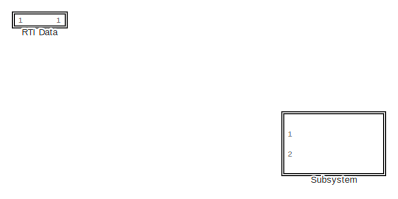
[diagram: root canvas - part 1/4, top left region]
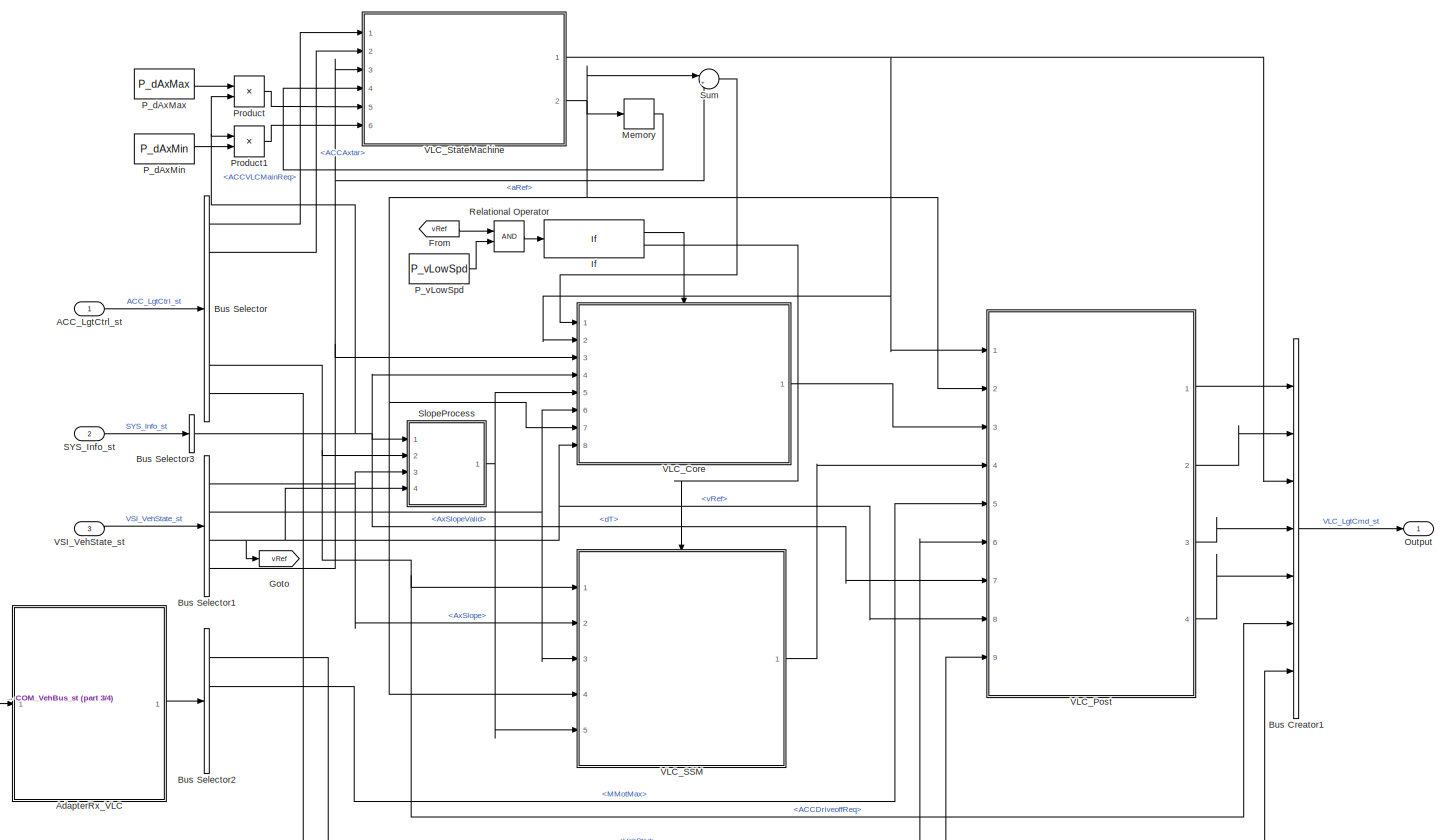
[diagram: root canvas - part 2/4, center side, full height]
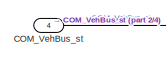
[diagram: root canvas - part 3/4, bottom left region]
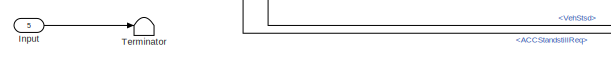
[diagram: root canvas - part 4/4, bottom center region]
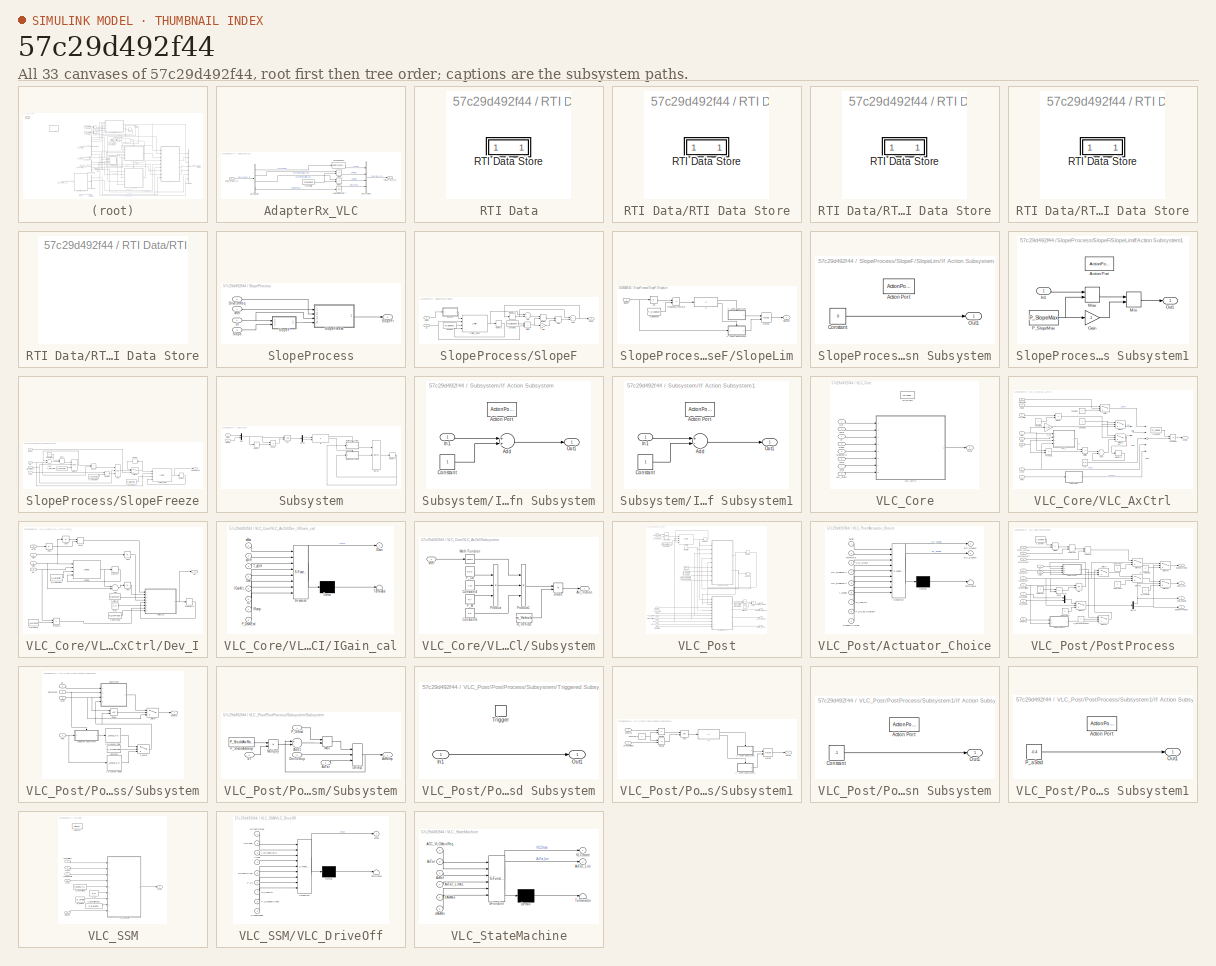
[diagram: thumbnail index - all 33 canvases of the model, root first then tree order]
MODEL slx_57c29d492f44
KIND model
CONFIG AbsTol = auto
CONFIG EnableMultiTasking = off
CONFIG FixedStep = 0.01
CONFIG MaxStep = auto
CONFIG MinStep = auto
CONFIG PostLoadFcn = if any(exist('dsrtsu_mdlpostloadfcn', 'file') ~= 0), dsrtsu_mdlpostloadfcn('Execute', bdroot); end
CONFIG RelTol = 1e-3
CONFIG SampleTimeConstraint = Unconstrained
CONFIG Solver = FixedStepDiscrete
CONFIG SolverName = FixedStepDiscrete
CONFIG StartTime = 0.0
CONFIG StopTime = inf
BLOCK [Inport] ACC_LgtCtrl_st
  BusOutputAsStruct = on
  IconDisplay = Port number
  OutDataTypeStr = Bus: ACC_LGTCTRL_ST
BLOCK [SubSystem] AdapterRx_VLC
  Ports = [1, 1]
  RequestExecContextInheritance = off
BLOCK [BusCreator] AdapterRx_VLC/Bus Creator2
  DisplayOption = bar
  InheritFromInputs = on
  Inputs = 4
  NonVirtualBus = on
  OutDataTypeStr = Bus: COM_PROPACT_ST
  Ports = [4, 1]
BLOCK [BusSelector] AdapterRx_VLC/Bus Selector
  OutputAsBus = off
  OutputSignals = x251.VehSdslSts,xAC.EPTTrInptShaftMaxAvlblToq,xAC.EPTTrInptShaftMinAvlblToq,x24C.WhlBrkPrsSts
  Ports = [1, 4]
BLOCK [Outport] AdapterRx_VLC/COM_PropAct_st
  IconDisplay = Port number
  OutDataTypeStr = Bus: COM_PROPACT_ST
BLOCK [Inport] AdapterRx_VLC/COM_VehBus_st
  IconDisplay = Port number
  OutDataTypeStr = Bus: COM_VEHBUS_ST
BLOCK [DataTypeConversion] AdapterRx_VLC/Cast To Boolean
  OutDataTypeStr = single
  RndMeth = Floor
  SaturateOnIntegerOverflow = off
BLOCK [Product] AdapterRx_VLC/Divide
  InputSameDT = off
  Inputs = **
  OutDataTypeStr = Inherit: Inherit via internal rule
  Ports = [2, 1]
  RndMeth = Floor
  SaturateOnIntegerOverflow = off
BLOCK [Product] AdapterRx_VLC/Divide1
  InputSameDT = off
  Inputs = **
  OutDataTypeStr = Inherit: Inherit via internal rule
  Ports = [2, 1]
  RndMeth = Floor
  SaturateOnIntegerOverflow = off
BLOCK [Logic] AdapterRx_VLC/Logical Operator7
  AllPortsSameDT = off
  Operator = NOT
  OutDataTypeStr = boolean
  Ports = [1, 1]
BLOCK [Constant] AdapterRx_VLC/TransRatio
  Value = TransRatio
BLOCK [BusCreator] Bus Creator1
  DisplayOption = bar
  InheritFromInputs = on
  Inputs = 7
  NonVirtualBus = on
  OutDataTypeStr = Bus: VLC_LGTCMD_ST
  Ports = [7, 1]
BLOCK [BusSelector] Bus Selector
  OutputAsBus = off
  OutputSignals = ACCVLCMainReq,ACCAxtar,ACCAxTarUpperComfBand,ACCAxTarLowerComfBand,ACCBrkPrfrd,ACCDriveoffReq,ACCStandstillReq
  Ports = [1, 7]
BLOCK [BusSelector] Bus Selector1
  OutputAsBus = off
  OutputSignals = AxSlope,AxSlopeValid,vRef,aRef
  Ports = [1, 4]
BLOCK [BusSelector] Bus Selector2
  OutputAsBus = off
  OutputSignals = VehStsd,MMotMax,MMotMin,BrakeForce
  Ports = [1, 4]
BLOCK [BusSelector] Bus Selector3
  OutputAsBus = off
  OutputSignals = dT
  Ports = [1, 1]
BLOCK [Inport] COM_VehBus_st
  BusOutputAsStruct = on
  IconDisplay = Port number
  OutDataTypeStr = Bus: COM_VEHBUS_ST
  Port = 4
BLOCK [From] From
  GotoTag = vRef
BLOCK [Goto] Goto
  GotoTag = vRef
BLOCK [If] If
  IfExpression = u1 == 1
  Ports = [1, 2]
BLOCK [Inport] Input
  BusOutputAsStruct = on
  IconDisplay = Port number
  OutDataTypeStr = Bus: COM_PROPACT_ST
  Port = 5
BLOCK [Memory] Memory
BLOCK [Outport] Output
  BusOutputAsStruct = on
  IconDisplay = Port number
  OutDataTypeStr = Bus: VLC_LGTCMD_ST
BLOCK [Constant] P_dAxMax
  Value = P_dAxMax
BLOCK [Constant] P_dAxMin
  Value = P_dAxMin
BLOCK [Constant] P_vLowSpd
  Value = P_vLowSpd
BLOCK [Product] Product
  InputSameDT = off
  OutDataTypeStr = Inherit: Inherit via internal rule
  Ports = [2, 1]
  RndMeth = Floor
  SaturateOnIntegerOverflow = off
BLOCK [Product] Product1
  InputSameDT = off
  OutDataTypeStr = Inherit: Inherit via internal rule
  Ports = [2, 1]
  RndMeth = Floor
  SaturateOnIntegerOverflow = off
BLOCK [SubSystem] RTI Data
  CopyFcn = if exist('rtidc'), try,  rtidc('DataHostBlockClbCopy', gcbh); catch, disp(['Warning: ''CopyFcn'' for RTI Data block failed: ' lasterr]); end, end,
  DeleteFcn = if exist('rtidc'), try,  rtidc('DataHostBlockClbDelete', gcbh); catch, disp(['Warning: ''DeleteFcn'' for RTI Data block failed: ' lasterr]); end, end,
  LoadFcn = if exist('rtidc'), try,  rtidc('DataHostBlockClbLoad', gcbh); catch, disp(['Warning: ''LoadFcn'' for RTI Data block failed: ' lasterr]); end, end,
  ModelCloseFcn = if exist('rtidc'), try,  rtidc('DataHostBlockClbModelClose', gcbh); catch, disp(['Warning: ''ModelCloseFcn'' for RTI Data block failed: ' lasterr]); end, end,
  NameChangeFcn = if exist('rtidc'), try,  rtidc('DataHostBlockClbNameChange', gcbh); catch, disp(['Warning: ''NameChangeFcn'' for RTI Data block failed: ' lasterr]); end, end,
  Ports = []
  PostSaveFcn = if exist('rtidc'), try,  rtidc('DataHostBlockClbPostSave', gcbh); catch, disp(['Warning: ''PostSaveFcn'' for RTI Data block failed: ' lasterr]); end, end,
  PreSaveFcn = if exist('rtidc'), try,  rtidc('DataHostBlockClbPreSave', gcbh); catch, disp(['Warning: ''PreSaveFcn'' for RTI Data block failed: ' lasterr]); end, end,
  RequestExecContextInheritance = off
  Tag = struct('RTIDataServer',struct('RTIDataServerVs','2','RTIModelDescription','struct(''main'',''VLC'',''sub'','''',''isMp'',0)'))
BLOCK [SubSystem] RTI Data/RTI Data Store
  Ports = []
  RequestExecContextInheritance = off
  Tag = struct('private',struct('version',struct('dsVer',uint32(2),'dsVerCreation',uint32(2),'RTI',struct('ver','7.12','type','RTI1401')),'access',struct('type','Model','isPerm',1,'created',['20-Nov-2020 12:07:07'],'modified',['07-Jan-2021 20:10:10'],'location','')),'public',struct('main',struct('data',[]),'sub',struct('name',{{'VLC'}},'data',{{struct('TH',struct('thTaskInfo',struct('taskType',{'TIMER','H...<+877ch>
BLOCK [SubSystem] RTI Data/RTI Data Store/RTI Data Store
  Ports = []
  RequestExecContextInheritance = off
BLOCK [SubSystem] RTI Data/RTI Data Store/RTI Data Store/RTI Data Store
  Ports = []
  RequestExecContextInheritance = off
BLOCK [SubSystem] RTI Data/RTI Data Store/RTI Data Store/RTI Data Store/RTI Data Store
  Ports = []
  RequestExecContextInheritance = off
BLOCK [RelationalOperator] Relational Operator
  InputSameDT = off
  OutDataTypeStr = boolean
  Ports = [2, 1]
  RndMeth = Simplest
BLOCK [Inport] SYS_Info_st
  BusOutputAsStruct = on
  IconDisplay = Port number
  OutDataTypeStr = Bus: SYS_INFO_ST
  Port = 2
BLOCK [SubSystem] SlopeProcess
  Ports = [4, 1]
  RequestExecContextInheritance = off
BLOCK [Inport] SlopeProcess/DriveOffReq
  IconDisplay = Port number
  Port = 2
BLOCK [Inport] SlopeProcess/Slope
  IconDisplay = Port number
  Port = 3
BLOCK [SubSystem] SlopeProcess/SlopeF
  Ports = [2, 1]
  RequestExecContextInheritance = off
BLOCK [Sum] SlopeProcess/SlopeF/Add
  InputSameDT = off
  Inputs = +-
  OutDataTypeStr = Inherit: Inherit via internal rule
  Ports = [2, 1]
  SaturateOnIntegerOverflow = off
BLOCK [Sum] SlopeProcess/SlopeF/Add1
  InputSameDT = off
  OutDataTypeStr = Inherit: Inherit via internal rule
  Ports = [2, 1]
  SaturateOnIntegerOverflow = off
BLOCK [Constant] SlopeProcess/SlopeF/Constant
  OutDataTypeStr = single
  Value = P_tSlopeFilter1
BLOCK [Constant] SlopeProcess/SlopeF/Constant1
  OutDataTypeStr = single
  Value = P_dSlopeLim
BLOCK [Gain] SlopeProcess/SlopeF/Gain
  Gain = -1
  OutDataTypeStr = Inherit: Inherit via internal rule
  ParamDataTypeStr = Inherit: Inherit via internal rule
  SaturateOnIntegerOverflow = off
BLOCK [Reference] SlopeProcess/SlopeF/LPFilter_Slope  REF=LPFilter/LPFilter
  Ports = [4, 1]
  SourceBlock = LPFilter/LPFilter
  SourceProductName = CustomLib
  SourceType = SubSystem
BLOCK [MinMax] SlopeProcess/SlopeF/Max
  Function = max
  InputSameDT = off
  Inputs = 2
  Ports = [2, 1]
  SaturateOnIntegerOverflow = off
BLOCK [Memory] SlopeProcess/SlopeF/Memory1
BLOCK [Memory] SlopeProcess/SlopeF/Memory2
BLOCK [MinMax] SlopeProcess/SlopeF/MinMax
  InputSameDT = off
  Inputs = 2
  Ports = [2, 1]
  SaturateOnIntegerOverflow = off
BLOCK [Product] SlopeProcess/SlopeF/Multiply
  InputSameDT = off
  OutDataTypeStr = Inherit: Inherit via internal rule
  Ports = [2, 1]
  RndMeth = Floor
  SaturateOnIntegerOverflow = off
BLOCK [Inport] SlopeProcess/SlopeF/Slope
  IconDisplay = Port number
  Port = 2
BLOCK [Outport] SlopeProcess/SlopeF/SlopeF
  IconDisplay = Port number
  OutDataTypeStr = single
BLOCK [SubSystem] SlopeProcess/SlopeF/SlopeLim
  Ports = [1, 1]
  RequestExecContextInheritance = off
BLOCK [Abs] SlopeProcess/SlopeF/SlopeLim/Abs
  SaturateOnIntegerOverflow = off
BLOCK [If] SlopeProcess/SlopeF/SlopeLim/If
  IfExpression = u1 == 1
  Ports = [1, 2]
BLOCK [SubSystem] SlopeProcess/SlopeF/SlopeLim/If Action Subsystem
  Ports = [0, 1, 0, 0, 0, 0, 0, 1]
  RequestExecContextInheritance = off
  TreatAsAtomicUnit = on
BLOCK [ActionPort] SlopeProcess/SlopeF/SlopeLim/If Action Subsystem/Action Port
  ActionType = then
BLOCK [Constant] SlopeProcess/SlopeF/SlopeLim/If Action Subsystem/Constant
  OutDataTypeStr = single
  Value = 0
BLOCK [Outport] SlopeProcess/SlopeF/SlopeLim/If Action Subsystem/Out1
  IconDisplay = Port number
BLOCK [SubSystem] SlopeProcess/SlopeF/SlopeLim/If Action Subsystem1
  Ports = [1, 1, 0, 0, 0, 0, 0, 1]
  RequestExecContextInheritance = off
  TreatAsAtomicUnit = on
BLOCK [ActionPort] SlopeProcess/SlopeF/SlopeLim/If Action Subsystem1/Action Port
  ActionType = else
BLOCK [Gain] SlopeProcess/SlopeF/SlopeLim/If Action Subsystem1/Gain
  Gain = -1
  OutDataTypeStr = Inherit: Inherit via internal rule
  ParamDataTypeStr = Inherit: Inherit via internal rule
  SaturateOnIntegerOverflow = off
BLOCK [Inport] SlopeProcess/SlopeF/SlopeLim/If Action Subsystem1/In1
  IconDisplay = Port number
BLOCK [MinMax] SlopeProcess/SlopeF/SlopeLim/If Action Subsystem1/Max
  InputSameDT = off
  Inputs = 2
  Ports = [2, 1]
  SaturateOnIntegerOverflow = off
BLOCK [MinMax] SlopeProcess/SlopeF/SlopeLim/If Action Subsystem1/Min
  Function = max
  InputSameDT = off
  Inputs = 2
  Ports = [2, 1]
  SaturateOnIntegerOverflow = off
BLOCK [Outport] SlopeProcess/SlopeF/SlopeLim/If Action Subsystem1/Out1
  IconDisplay = Port number
BLOCK [Constant] SlopeProcess/SlopeF/SlopeLim/If Action Subsystem1/P_SlopeMax
  OutDataTypeStr = single
  Value = P_SlopeMax
BLOCK [Merge] SlopeProcess/SlopeF/SlopeLim/Merge
  Ports = [2, 1]
BLOCK [Constant] SlopeProcess/SlopeF/SlopeLim/P_SlopeMin
  OutDataTypeStr = single
  Value = P_SlopeMin
BLOCK [RelationalOperator] SlopeProcess/SlopeF/SlopeLim/Relational Operator
  InputSameDT = off
  Operator = <=
  OutDataTypeStr = boolean
  Ports = [2, 1]
  RndMeth = Simplest
BLOCK [Inport] SlopeProcess/SlopeF/SlopeLim/SlopeF
  IconDisplay = Port number
BLOCK [Outport] SlopeProcess/SlopeF/SlopeLim/SlopeLim
  IconDisplay = Port number
BLOCK [Inport] SlopeProcess/SlopeF/dt
  IconDisplay = Port number
BLOCK [Outport] SlopeProcess/SlopeFr
  IconDisplay = Port number
BLOCK [SubSystem] SlopeProcess/SlopeFreeze
  Ports = [4, 1]
  RequestExecContextInheritance = off
BLOCK [Logic] SlopeProcess/SlopeFreeze/AND1
  AllPortsSameDT = off
  Inputs = 3
  OutDataTypeStr = boolean
  Ports = [3, 1]
BLOCK [Sum] SlopeProcess/SlopeFreeze/Add1
  InputSameDT = off
  Inputs = +-
  OutDataTypeStr = Inherit: Inherit via internal rule
  Ports = [2, 1]
  SaturateOnIntegerOverflow = off
BLOCK [Constant] SlopeProcess/SlopeFreeze/Constant
  OutDataTypeStr = single
  Value = P_tSlopeFilter2
BLOCK [Constant] SlopeProcess/SlopeFreeze/Constant7
  OutDataTypeStr = single
  Value = 0
BLOCK [Delay] SlopeProcess/SlopeFreeze/Delay1
  DelayLength = 1
  ExternalReset = Rising
  InitialConditionSource = Input port
  InputPortMap = u0,r5,p4
  Ports = [3, 1]
BLOCK [Inport] SlopeProcess/SlopeFreeze/DriveOffReq
  IconDisplay = Port number
  Port = 2
BLOCK [RelationalOperator] SlopeProcess/SlopeFreeze/Equal4
  InputSameDT = off
  Operator = >
  OutDataTypeStr = boolean
  Ports = [2, 1]
  RndMeth = Simplest
BLOCK [RelationalOperator] SlopeProcess/SlopeFreeze/Equal5
  InputSameDT = off
  Operator = <
  OutDataTypeStr = boolean
  Ports = [2, 1]
  RndMeth = Simplest
BLOCK [Reference] SlopeProcess/SlopeFreeze/LPFilter_Slope  REF=LPFilter/LPFilter
  Ports = [4, 1]
  SourceBlock = LPFilter/LPFilter
  SourceProductName = CustomLib
  SourceType = SubSystem
BLOCK [MinMax] SlopeProcess/SlopeFreeze/Max1
  Function = max
  InputSameDT = off
  Inputs = 2
  Ports = [2, 1]
  SaturateOnIntegerOverflow = off
BLOCK [Memory] SlopeProcess/SlopeFreeze/Memory
BLOCK [Memory] SlopeProcess/SlopeFreeze/Memory2
BLOCK [Constant] SlopeProcess/SlopeFreeze/P_tDriveOffThr
  OutDataTypeStr = single
  Value = P_tDriveOffThr
BLOCK [Constant] SlopeProcess/SlopeFreeze/P_vDriveOffThr
  OutDataTypeStr = single
  Value = P_vDriveOffThr
BLOCK [Inport] SlopeProcess/SlopeFreeze/SlopeF
  IconDisplay = Port number
  Port = 4
BLOCK [Outport] SlopeProcess/SlopeFreeze/SlopeFreeze
  IconDisplay = Port number
BLOCK [Switch] SlopeProcess/SlopeFreeze/Switch5
  Criteria = u2 > Threshold
  InputSameDT = off
  SaturateOnIntegerOverflow = off
BLOCK [Inport] SlopeProcess/SlopeFreeze/dT
  IconDisplay = Port number
  Port = 3
BLOCK [Inport] SlopeProcess/SlopeFreeze/vVeh
  IconDisplay = Port number
BLOCK [Inport] SlopeProcess/dt
  IconDisplay = Port number
BLOCK [Inport] SlopeProcess/vRef
  IconDisplay = Port number
  Port = 4
BLOCK [SubSystem] Subsystem
  Commented = on
  Ports = [2]
  RequestExecContextInheritance = off
BLOCK [Logic] Subsystem/AND
  AllPortsSameDT = off
  OutDataTypeStr = boolean
  Ports = [2, 1]
BLOCK [Demux] Subsystem/Demux
  DisplayOption = bar
  Outputs = 2
  Ports = [1, 2]
BLOCK [Inport] Subsystem/DisDec
  IconDisplay = Port number
  Port = 2
BLOCK [Inport] Subsystem/DisInc
  IconDisplay = Port number
BLOCK [RelationalOperator] Subsystem/Equal
  InputSameDT = off
  Operator = ~=
  OutDataTypeStr = boolean
  Ports = [2, 1]
  RndMeth = Simplest
BLOCK [SubSystem] Subsystem/If Action Subsystem
  Ports = [1, 1, 0, 0, 0, 0, 0, 1]
  RequestExecContextInheritance = off
  TreatAsAtomicUnit = on
BLOCK [ActionPort] Subsystem/If Action Subsystem/Action Port
  ActionType = then
BLOCK [Sum] Subsystem/If Action Subsystem/Add
  InputSameDT = off
  OutDataTypeStr = Inherit: Inherit via internal rule
  Ports = [2, 1]
  SaturateOnIntegerOverflow = off
BLOCK [Constant] Subsystem/If Action Subsystem/Constant
  OutDataTypeStr = single
BLOCK [Inport] Subsystem/If Action Subsystem/In1
  IconDisplay = Port number
BLOCK [Outport] Subsystem/If Action Subsystem/Out1
  IconDisplay = Port number
BLOCK [SubSystem] Subsystem/If Action Subsystem1
  Ports = [1, 1, 0, 0, 0, 0, 0, 1]
  RequestExecContextInheritance = off
  TreatAsAtomicUnit = on
BLOCK [ActionPort] Subsystem/If Action Subsystem1/Action Port
  ActionType = elseif
BLOCK [Sum] Subsystem/If Action Subsystem1/Add
  InputSameDT = off
  Inputs = +-
  OutDataTypeStr = Inherit: Inherit via internal rule
  Ports = [2, 1]
  SaturateOnIntegerOverflow = off
BLOCK [Constant] Subsystem/If Action Subsystem1/Constant
  OutDataTypeStr = single
BLOCK [Inport] Subsystem/If Action Subsystem1/In1
  IconDisplay = Port number
BLOCK [Outport] Subsystem/If Action Subsystem1/Out1
  IconDisplay = Port number
BLOCK [If] Subsystem/If1
  ElseIfExpressions = u2 == 1
  IfExpression = u1 == 1
  NumInputs = 2
  Ports = [2, 3]
BLOCK [Memory] Subsystem/Memory
BLOCK [Memory] Subsystem/Memory1
BLOCK [Merge] Subsystem/Merge
  Inputs = 3
  Ports = [3, 1]
BLOCK [Mux] Subsystem/Mux
  DisplayOption = bar
  Inputs = 2
  Ports = [2, 1]
BLOCK [Sum] Sum
  IconShape = round
  InputSameDT = off
  Inputs = |+-
  OutDataTypeStr = Inherit: Inherit via internal rule
  Ports = [2, 1]
  SaturateOnIntegerOverflow = off
BLOCK [Terminator] Terminator
BLOCK [SubSystem] VLC_Core
  Ports = [8, 1, 0, 0, 0, 0, 0, 1]
  RequestExecContextInheritance = off
BLOCK [ActionPort] VLC_Core/Action Port
  ActionType = then
BLOCK [Inport] VLC_Core/AxTar
  IconDisplay = Port number
  Port = 7
BLOCK [Inport] VLC_Core/Dev
  IconDisplay = Port number
BLOCK [Outport] VLC_Core/FxTar
  IconDisplay = Port number
BLOCK [Inport] VLC_Core/Slope
  IconDisplay = Port number
  Port = 5
BLOCK [Inport] VLC_Core/SlopeValid
  IconDisplay = Port number
  Port = 6
BLOCK [SubSystem] VLC_Core/VLC_AxCtrl
  Ports = [8, 1]
  RequestExecContextInheritance = off
BLOCK [Sum] VLC_Core/VLC_AxCtrl/Add1
  InputSameDT = off
  OutDataTypeStr = Inherit: Inherit via internal rule
  Ports = [2, 1]
  SaturateOnIntegerOverflow = off
BLOCK [Sum] VLC_Core/VLC_AxCtrl/Add2
  InputSameDT = off
  Inputs = +++++
  OutDataTypeStr = Inherit: Inherit via internal rule
  Ports = [5, 1]
  SaturateOnIntegerOverflow = off
BLOCK [Sum] VLC_Core/VLC_AxCtrl/Add4
  InputSameDT = off
  OutDataTypeStr = Inherit: Inherit via internal rule
  Ports = [2, 1]
  SaturateOnIntegerOverflow = off
BLOCK [Inport] VLC_Core/VLC_AxCtrl/AxTar
  IconDisplay = Port number
  Port = 7
BLOCK [Constant] VLC_Core/VLC_AxCtrl/Constant
  OutDataTypeStr = single
  Value = 0
BLOCK [Constant] VLC_Core/VLC_AxCtrl/Constant1
  OutDataTypeStr = single
  Value = 0
BLOCK [Constant] VLC_Core/VLC_AxCtrl/Constant2
  OutDataTypeStr = single
  Value = 2
BLOCK [Inport] VLC_Core/VLC_AxCtrl/Dev
  IconDisplay = Port number
BLOCK [SubSystem] VLC_Core/VLC_AxCtrl/Dev_I
  Ports = [4, 1]
  RequestExecContextInheritance = off
BLOCK [Abs] VLC_Core/VLC_AxCtrl/Dev_I/Abs1
  SaturateOnIntegerOverflow = off
BLOCK [Abs] VLC_Core/VLC_AxCtrl/Dev_I/Abs2
  SaturateOnIntegerOverflow = off
BLOCK [Abs] VLC_Core/VLC_AxCtrl/Dev_I/Abs3
  SaturateOnIntegerOverflow = off
BLOCK [Abs] VLC_Core/VLC_AxCtrl/Dev_I/Abs4
  SaturateOnIntegerOverflow = off
BLOCK [Sum] VLC_Core/VLC_AxCtrl/Dev_I/Add
  InputSameDT = off
  Inputs = +-
  OutDataTypeStr = Inherit: Inherit via internal rule
  Ports = [2, 1]
  SaturateOnIntegerOverflow = off
BLOCK [Inport] VLC_Core/VLC_AxCtrl/Dev_I/AxTar
  IconDisplay = Port number
  Port = 4
BLOCK [Inport] VLC_Core/VLC_AxCtrl/Dev_I/Dev
  IconDisplay = Port number
BLOCK [SubSystem] VLC_Core/VLC_AxCtrl/Dev_I/IGain_cal
  ErrorFcn = Stateflow.Translate.translate
  PermitHierarchicalResolution = ExplicitOnly
  Ports = [8, 1]
  RequestExecContextInheritance = off
  SFBlockType = MATLAB Function
  TreatAsAtomicUnit = on
BLOCK [Demux] VLC_Core/VLC_AxCtrl/Dev_I/IGain_cal/ Demux 
  Outputs = 1
  Ports = [1, 1]
BLOCK [S-Function] VLC_Core/VLC_AxCtrl/Dev_I/IGain_cal/ SFunction 
  EnableBusSupport = on
  FunctionName = sf_sfun
  PortCounts = [8 2]
  Ports = [8, 2]
  SFcnIsStateOwnerBlock = off
  SFunctionDeploymentMode = off
  Tag = Stateflow S-Function VLC 2
BLOCK [Terminator] VLC_Core/VLC_AxCtrl/Dev_I/IGain_cal/ Terminator 
BLOCK [Inport] VLC_Core/VLC_AxCtrl/Dev_I/IGain_cal/Dev
  IconDisplay = Port number
  Port = 4
BLOCK [Outport] VLC_Core/VLC_AxCtrl/Dev_I/IGain_cal/IGain
  IconDisplay = Port number
BLOCK [Inport] VLC_Core/VLC_AxCtrl/Dev_I/IGain_cal/IGainK1
  IconDisplay = Port number
  Port = 5
BLOCK [Inport] VLC_Core/VLC_AxCtrl/Dev_I/IGain_cal/IRamp
  IconDisplay = Port number
  Port = 7
BLOCK [Inport] VLC_Core/VLC_AxCtrl/Dev_I/IGain_cal/Ki
  IconDisplay = Port number
  Port = 6
BLOCK [Inport] VLC_Core/VLC_AxCtrl/Dev_I/IGain_cal/P_Dev4IEnd
  IconDisplay = Port number
  Port = 8
BLOCK [Inport] VLC_Core/VLC_AxCtrl/Dev_I/IGain_cal/T_aDiff
  IconDisplay = Port number
  Port = 3
BLOCK [Inport] VLC_Core/VLC_AxCtrl/Dev_I/IGain_cal/aDiff
  IconDisplay = Port number
  Port = 2
BLOCK [Inport] VLC_Core/VLC_AxCtrl/Dev_I/IGain_cal/aMax
  IconDisplay = Port number
BLOCK [Outport] VLC_Core/VLC_AxCtrl/Dev_I/Ki
  IconDisplay = Port number
BLOCK [Reference] VLC_Core/VLC_AxCtrl/Dev_I/LPFilter  REF=LPFilter/LPFilter
  Ports = [4, 1]
  SourceBlock = LPFilter/LPFilter
  SourceProductName = CustomLib
  SourceType = SubSystem
BLOCK [MinMax] VLC_Core/VLC_AxCtrl/Dev_I/Max
  Function = max
  InputSameDT = off
  Inputs = 2
  Ports = [2, 1]
  SaturateOnIntegerOverflow = off
BLOCK [Memory] VLC_Core/VLC_AxCtrl/Dev_I/Memory
BLOCK [Memory] VLC_Core/VLC_AxCtrl/Dev_I/Memory1
BLOCK [Constant] VLC_Core/VLC_AxCtrl/Dev_I/P_Dev4IEnd
  Value = P_Dev4IEnd
BLOCK [Constant] VLC_Core/VLC_AxCtrl/Dev_I/P_Ki
  Value = P_Ki
BLOCK [Constant] VLC_Core/VLC_AxCtrl/Dev_I/P_aDiffaF
  Value = P_aDiffaF
BLOCK [Constant] VLC_Core/VLC_AxCtrl/Dev_I/P_dIRamp
  Value = P_dIRamp
BLOCK [Constant] VLC_Core/VLC_AxCtrl/Dev_I/P_tARefFilter
  Value = P_tARefFilter
BLOCK [Product] VLC_Core/VLC_AxCtrl/Dev_I/Product1
  InputSameDT = off
  OutDataTypeStr = Inherit: Inherit via internal rule
  Ports = [2, 1]
  RndMeth = Floor
  SaturateOnIntegerOverflow = off
BLOCK [Inport] VLC_Core/VLC_AxCtrl/Dev_I/aRef
  IconDisplay = Port number
  Port = 2
BLOCK [Inport] VLC_Core/VLC_AxCtrl/Dev_I/dT
  IconDisplay = Port number
  Port = 3
BLOCK [RelationalOperator] VLC_Core/VLC_AxCtrl/Equal
  InputSameDT = off
  Operator = ~=
  OutDataTypeStr = boolean
  Ports = [2, 1]
  RndMeth = Simplest
BLOCK [Outport] VLC_Core/VLC_AxCtrl/FxTar
  IconDisplay = Port number
BLOCK [Memory] VLC_Core/VLC_AxCtrl/Memory1
BLOCK [Product] VLC_Core/VLC_AxCtrl/Multiply
  InputSameDT = off
  OutDataTypeStr = Inherit: Inherit via internal rule
  Ports = [2, 1]
  RndMeth = Floor
  SaturateOnIntegerOverflow = off
BLOCK [Constant] VLC_Core/VLC_AxCtrl/P_Cf
  OutDataTypeStr = single
  Value = P_Cf
BLOCK [Gain] VLC_Core/VLC_AxCtrl/P_Kp
  Gain = P_Kp
  OutDataTypeStr = Inherit: Inherit via internal rule
  ParamDataTypeStr = Inherit: Inherit via internal rule
  SaturateOnIntegerOverflow = off
BLOCK [Product] VLC_Core/VLC_AxCtrl/Product1
  InputSameDT = off
  OutDataTypeStr = Inherit: Inherit via internal rule
  Ports = [2, 1]
  RndMeth = Floor
  SaturateOnIntegerOverflow = off
BLOCK [Product] VLC_Core/VLC_AxCtrl/Product2
  InputSameDT = off
  OutDataTypeStr = Inherit: Inherit via internal rule
  Ports = [2, 1]
  RndMeth = Floor
  SaturateOnIntegerOverflow = off
BLOCK [Inport] VLC_Core/VLC_AxCtrl/Slope
  IconDisplay = Port number
  Port = 4
BLOCK [Inport] VLC_Core/VLC_AxCtrl/SlopeValid
  IconDisplay = Port number
  Port = 5
BLOCK [SubSystem] VLC_Core/VLC_AxCtrl/Subsystem
  Ports = [1, 1]
  RequestExecContextInheritance = off
BLOCK [Outport] VLC_Core/VLC_AxCtrl/Subsystem/Air_friction
  IconDisplay = Port number
BLOCK [Constant] VLC_Core/VLC_AxCtrl/Subsystem/Constant4
  OutDataTypeStr = single
  Value = 1.23
BLOCK [Constant] VLC_Core/VLC_AxCtrl/Subsystem/Constant6
  OutDataTypeStr = single
  Value = 0.5
BLOCK [Product] VLC_Core/VLC_AxCtrl/Subsystem/Divide
  InputSameDT = off
  Inputs = */
  OutDataTypeStr = Inherit: Inherit via internal rule
  Ports = [2, 1]
  RndMeth = Floor
  SaturateOnIntegerOverflow = off
BLOCK [Math] VLC_Core/VLC_AxCtrl/Subsystem/Math Function
  Operator = square
  Ports = [1, 1]
BLOCK [Constant] VLC_Core/VLC_AxCtrl/Subsystem/P_A
  OutDataTypeStr = single
  Value = P_A
BLOCK [Constant] VLC_Core/VLC_AxCtrl/Subsystem/P_Cd
  OutDataTypeStr = single
  Value = P_Cd
BLOCK [Product] VLC_Core/VLC_AxCtrl/Subsystem/Product
  InputSameDT = off
  Inputs = 3
  OutDataTypeStr = Inherit: Inherit via internal rule
  Ports = [3, 1]
  RndMeth = Floor
  SaturateOnIntegerOverflow = off
BLOCK [Product] VLC_Core/VLC_AxCtrl/Subsystem/Product1
  InputSameDT = off
  Inputs = 3
  OutDataTypeStr = Inherit: Inherit via internal rule
  Ports = [3, 1]
  RndMeth = Floor
  SaturateOnIntegerOverflow = off
BLOCK [Constant] VLC_Core/VLC_AxCtrl/Subsystem/m_Vehicle
  Value = m_Vehicle
BLOCK [Inport] VLC_Core/VLC_AxCtrl/Subsystem/vRef
  IconDisplay = Port number
BLOCK [Switch] VLC_Core/VLC_AxCtrl/Switch
  Criteria = u2 > Threshold
  InputSameDT = off
  SaturateOnIntegerOverflow = off
BLOCK [Switch] VLC_Core/VLC_AxCtrl/Switch1
  Criteria = u2 ~= 0
  InputSameDT = off
  SaturateOnIntegerOverflow = off
  Threshold = 2
BLOCK [Switch] VLC_Core/VLC_AxCtrl/Switch2
  Criteria = u2 ~= 0
  InputSameDT = off
  SaturateOnIntegerOverflow = off
  Threshold = 3
BLOCK [Inport] VLC_Core/VLC_AxCtrl/VLC_State
  IconDisplay = Port number
  Port = 8
BLOCK [Inport] VLC_Core/VLC_AxCtrl/aRef
  IconDisplay = Port number
  Port = 2
BLOCK [Inport] VLC_Core/VLC_AxCtrl/dT
  IconDisplay = Port number
  Port = 3
BLOCK [Constant] VLC_Core/VLC_AxCtrl/m_Vehicle
  Value = m_Vehicle
BLOCK [Inport] VLC_Core/VLC_AxCtrl/vRef
  IconDisplay = Port number
  Port = 6
BLOCK [Inport] VLC_Core/VLC_State
  IconDisplay = Port number
  Port = 2
BLOCK [Inport] VLC_Core/aRef
  IconDisplay = Port number
  Port = 3
BLOCK [Inport] VLC_Core/dT
  IconDisplay = Port number
  Port = 4
BLOCK [Inport] VLC_Core/vRef
  IconDisplay = Port number
  Port = 8
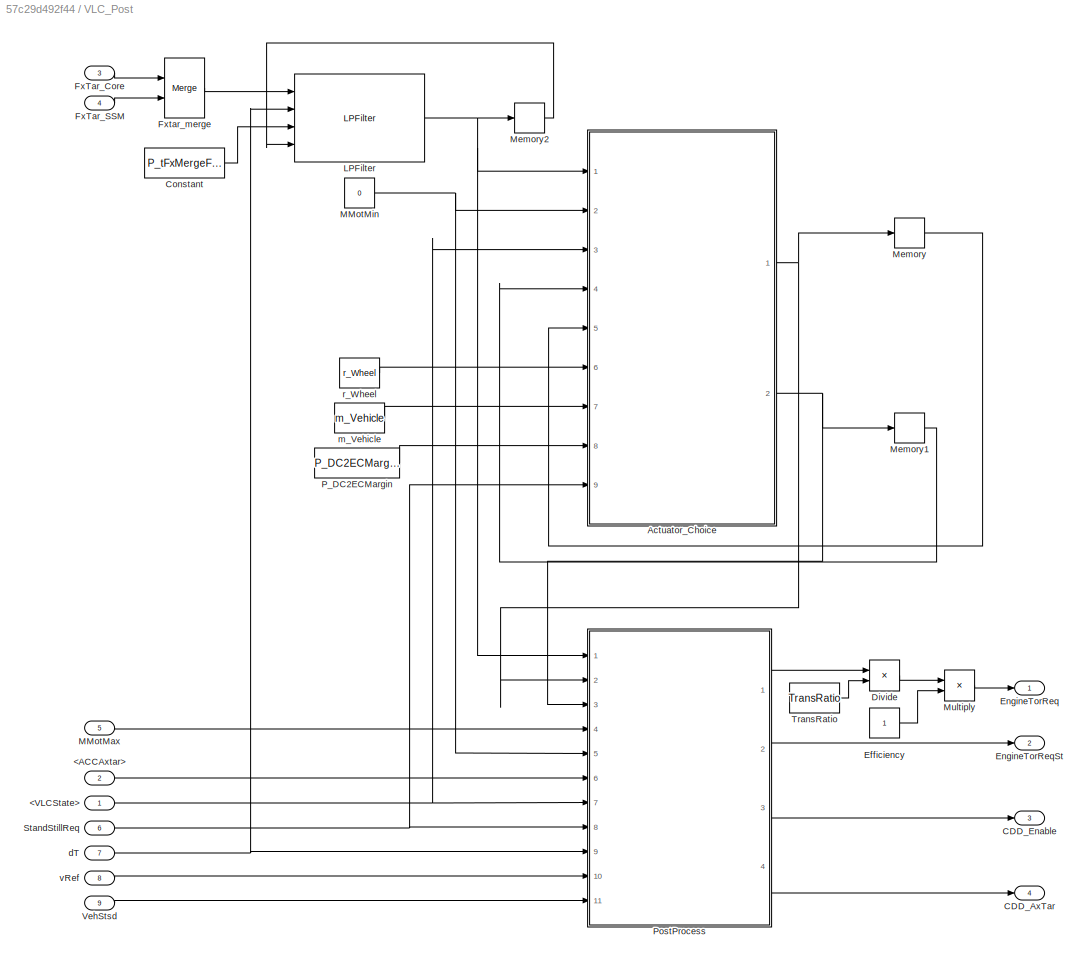
BLOCK [SubSystem] VLC_Post
  Ports = [9, 4]
  RequestExecContextInheritance = off
BLOCK [Inport] VLC_Post/<ACCAxtar>
  IconDisplay = Port number
  Port = 2
BLOCK [Inport] VLC_Post/<VLCState>
  IconDisplay = Port number
BLOCK [SubSystem] VLC_Post/Actuator_Choice
  ErrorFcn = Stateflow.Translate.translate
  PermitHierarchicalResolution = ExplicitOnly
  Ports = [9, 2]
  RequestExecContextInheritance = off
  SFBlockType = MATLAB Function
  TreatAsAtomicUnit = on
BLOCK [Demux] VLC_Post/Actuator_Choice/ Demux 
  Outputs = 1
  Ports = [1, 1]
BLOCK [S-Function] VLC_Post/Actuator_Choice/ SFunction 
  EnableBusSupport = on
  FunctionName = sf_sfun
  PortCounts = [9 3]
  Ports = [9, 3]
  SFcnIsStateOwnerBlock = off
  SFunctionDeploymentMode = off
  Tag = Stateflow S-Function VLC 4
BLOCK [Terminator] VLC_Post/Actuator_Choice/ Terminator 
BLOCK [Outport] VLC_Post/Actuator_Choice/DC_Enable
  IconDisplay = Port number
BLOCK [Inport] VLC_Post/Actuator_Choice/DC_EnableK1
  IconDisplay = Port number
  Port = 5
BLOCK [Outport] VLC_Post/Actuator_Choice/EC_Enable
  IconDisplay = Port number
  Port = 2
BLOCK [Inport] VLC_Post/Actuator_Choice/EC_EnableK1
  IconDisplay = Port number
  Port = 4
BLOCK [Inport] VLC_Post/Actuator_Choice/FxTar
  IconDisplay = Port number
BLOCK [Inport] VLC_Post/Actuator_Choice/MMotMin
  IconDisplay = Port number
  Port = 2
BLOCK [Inport] VLC_Post/Actuator_Choice/P_DC2ECMargin
  IconDisplay = Port number
  Port = 8
BLOCK [Inport] VLC_Post/Actuator_Choice/StandStillReq
  IconDisplay = Port number
  Port = 9
BLOCK [Inport] VLC_Post/Actuator_Choice/VLC_State
  IconDisplay = Port number
  Port = 3
BLOCK [Inport] VLC_Post/Actuator_Choice/m_Vehicle
  IconDisplay = Port number
  Port = 7
BLOCK [Inport] VLC_Post/Actuator_Choice/r_Wheel
  IconDisplay = Port number
  Port = 6
BLOCK [Outport] VLC_Post/CDD_AxTar
  IconDisplay = Port number
  Port = 4
BLOCK [Outport] VLC_Post/CDD_Enable
  IconDisplay = Port number
  Port = 3
BLOCK [Constant] VLC_Post/Constant
  OutDataTypeStr = single
  Value = P_tFxMergeFilter
BLOCK [Product] VLC_Post/Divide
  InputSameDT = off
  Inputs = */
  OutDataTypeStr = Inherit: Inherit via internal rule
  Ports = [2, 1]
  RndMeth = Floor
  SaturateOnIntegerOverflow = off
BLOCK [Constant] VLC_Post/Efficiency
BLOCK [Outport] VLC_Post/EngineTorReq
  IconDisplay = Port number
BLOCK [Outport] VLC_Post/EngineTorReqSt
  IconDisplay = Port number
  Port = 2
BLOCK [Inport] VLC_Post/FxTar_Core
  IconDisplay = Port number
  Port = 3
BLOCK [Inport] VLC_Post/FxTar_SSM
  IconDisplay = Port number
  Port = 4
BLOCK [Merge] VLC_Post/Fxtar_merge
  Ports = [2, 1]
BLOCK [Reference] VLC_Post/LPFilter  REF=LPFilter/LPFilter
  Ports = [4, 1]
  SourceBlock = LPFilter/LPFilter
  SourceProductName = CustomLib
  SourceType = SubSystem
BLOCK [Inport] VLC_Post/MMotMax
  IconDisplay = Port number
  Port = 5
BLOCK [Constant] VLC_Post/MMotMin
  OutDataTypeStr = single
  Value = 0
BLOCK [Memory] VLC_Post/Memory
BLOCK [Memory] VLC_Post/Memory1
BLOCK [Memory] VLC_Post/Memory2
BLOCK [Product] VLC_Post/Multiply
  InputSameDT = off
  OutDataTypeStr = single
  Ports = [2, 1]
  RndMeth = Floor
  SaturateOnIntegerOverflow = off
BLOCK [Constant] VLC_Post/P_DC2ECMargin
  Value = P_DC2ECMargin
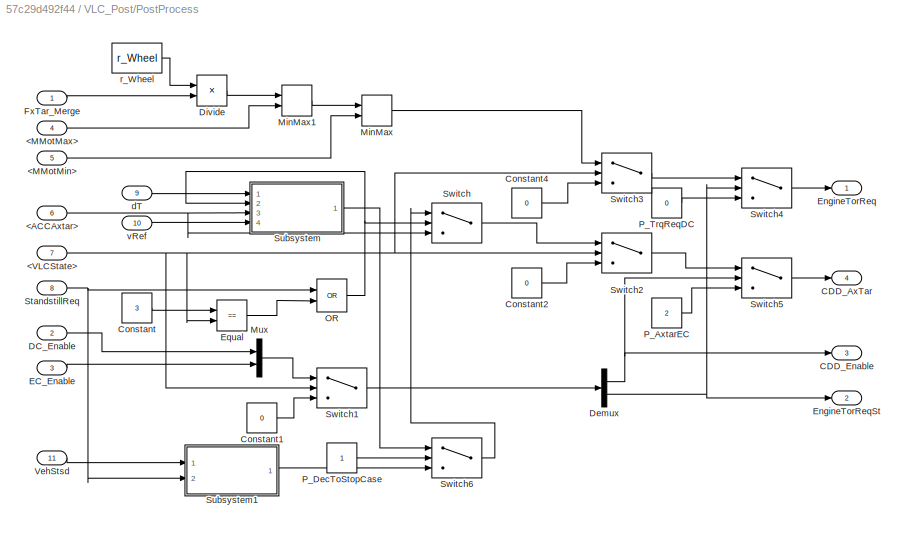
BLOCK [SubSystem] VLC_Post/PostProcess
  Ports = [11, 4]
  RequestExecContextInheritance = off
BLOCK [Inport] VLC_Post/PostProcess/<ACCAxtar>
  IconDisplay = Port number
  Port = 6
BLOCK [Inport] VLC_Post/PostProcess/<MMotMax>
  IconDisplay = Port number
  Port = 4
BLOCK [Inport] VLC_Post/PostProcess/<MMotMin>
  IconDisplay = Port number
  Port = 5
BLOCK [Inport] VLC_Post/PostProcess/<VLCState>
  IconDisplay = Port number
  Port = 7
BLOCK [Outport] VLC_Post/PostProcess/CDD_AxTar
  IconDisplay = Port number
  Port = 4
BLOCK [Outport] VLC_Post/PostProcess/CDD_Enable
  IconDisplay = Port number
  Port = 3
BLOCK [Constant] VLC_Post/PostProcess/Constant
  Value = 3
BLOCK [Constant] VLC_Post/PostProcess/Constant1
  Value = 0
BLOCK [Constant] VLC_Post/PostProcess/Constant2
  Value = 0
BLOCK [Constant] VLC_Post/PostProcess/Constant4
  Value = 0
BLOCK [Inport] VLC_Post/PostProcess/DC_Enable
  IconDisplay = Port number
  Port = 2
BLOCK [Demux] VLC_Post/PostProcess/Demux
  DisplayOption = bar
  Outputs = 2
  Ports = [1, 2]
BLOCK [Product] VLC_Post/PostProcess/Divide
  InputSameDT = off
  Inputs = **
  OutDataTypeStr = single
  Ports = [2, 1]
  RndMeth = Floor
  SaturateOnIntegerOverflow = off
BLOCK [Inport] VLC_Post/PostProcess/EC_Enable
  IconDisplay = Port number
  Port = 3
BLOCK [Outport] VLC_Post/PostProcess/EngineTorReq
  IconDisplay = Port number
BLOCK [Outport] VLC_Post/PostProcess/EngineTorReqSt
  IconDisplay = Port number
  Port = 2
BLOCK [RelationalOperator] VLC_Post/PostProcess/Equal
  InputSameDT = off
  Operator = ==
  OutDataTypeStr = boolean
  Ports = [2, 1]
  RndMeth = Simplest
BLOCK [Inport] VLC_Post/PostProcess/FxTar_Merge
  IconDisplay = Port number
BLOCK [MinMax] VLC_Post/PostProcess/MinMax
  Function = max
  InputSameDT = off
  Inputs = 2
  Ports = [2, 1]
  SaturateOnIntegerOverflow = off
BLOCK [MinMax] VLC_Post/PostProcess/MinMax1
  InputSameDT = off
  Inputs = 2
  Ports = [2, 1]
  SaturateOnIntegerOverflow = off
BLOCK [Mux] VLC_Post/PostProcess/Mux
  DisplayOption = bar
  Inputs = 2
  Ports = [2, 1]
BLOCK [Logic] VLC_Post/PostProcess/OR
  AllPortsSameDT = off
  Operator = OR
  OutDataTypeStr = boolean
  Ports = [2, 1]
BLOCK [Constant] VLC_Post/PostProcess/P_AxtarEC
  OutDataTypeStr = single
  Value = 2
BLOCK [Constant] VLC_Post/PostProcess/P_DecToStopCase
  OutDataTypeStr = single
BLOCK [Constant] VLC_Post/PostProcess/P_TrqReqDC
  OutDataTypeStr = single
  Value = 0
BLOCK [Inport] VLC_Post/PostProcess/StandstillReq
  IconDisplay = Port number
  Port = 8
BLOCK [SubSystem] VLC_Post/PostProcess/Subsystem
  Ports = [4, 1]
  RequestExecContextInheritance = off
BLOCK [Lookup_n-D] VLC_Post/PostProcess/Subsystem/1-D Lookup Table
  BreakpointsForDimension1 = [1 3]
  ExtrapMethod = Clip
  InternalRulePriority = Speed
  NumberOfTableDimensions = 1
  Ports = [1, 1]
  RndMeth = Simplest
  Table = [-1 -2]
BLOCK [Lookup_n-D] VLC_Post/PostProcess/Subsystem/1-D Lookup Table1
  BreakpointsForDimension1 = [1 3]
  ExtrapMethod = Clip
  InternalRulePriority = Speed
  NumberOfTableDimensions = 1
  Ports = [1, 1]
  RndMeth = Simplest
  Table = [-1 -2]
BLOCK [Outport] VLC_Post/PostProcess/Subsystem/AxRamp
  IconDisplay = Port number
BLOCK [Inport] VLC_Post/PostProcess/Subsystem/AxTar
  IconDisplay = Port number
  Port = 3
BLOCK [Constant] VLC_Post/PostProcess/Subsystem/Constant
  OutDataTypeStr = single
  Value = P_StsdCase
BLOCK [Inport] VLC_Post/PostProcess/Subsystem/DecToStop
  IconDisplay = Port number
  Port = 2
BLOCK [RelationalOperator] VLC_Post/PostProcess/Subsystem/Equal
  InputSameDT = off
  OutDataTypeStr = boolean
  Ports = [2, 1]
  RndMeth = Simplest
BLOCK [Switch] VLC_Post/PostProcess/Subsystem/P_aStsd
  Criteria = u2 > Threshold
  InputSameDT = off
  SaturateOnIntegerOverflow = off
BLOCK [SubSystem] VLC_Post/PostProcess/Subsystem/Subsystem
  Ports = [4, 1]
  RequestExecContextInheritance = off
BLOCK [Sum] VLC_Post/PostProcess/Subsystem/Subsystem/Add1
  InputSameDT = off
  Inputs = +-
  OutDataTypeStr = Inherit: Inherit via internal rule
  Ports = [2, 1]
  SaturateOnIntegerOverflow = off
BLOCK [Outport] VLC_Post/PostProcess/Subsystem/Subsystem/AxRamp
  IconDisplay = Port number
BLOCK [Inport] VLC_Post/PostProcess/Subsystem/Subsystem/AxTar
  IconDisplay = Port number
  Port = 3
BLOCK [Inport] VLC_Post/PostProcess/Subsystem/Subsystem/DecToStop
  IconDisplay = Port number
  Port = 2
BLOCK [Delay] VLC_Post/PostProcess/Subsystem/Subsystem/Delay1
  DelayLength = 1
  ExternalReset = Rising
  InitialConditionSource = Input port
  InputPortMap = u0,r5,p4
  Ports = [3, 1]
BLOCK [MinMax] VLC_Post/PostProcess/Subsystem/Subsystem/Max
  Function = max
  InputSameDT = off
  Inputs = 2
  Ports = [2, 1]
  SaturateOnIntegerOverflow = off
BLOCK [Product] VLC_Post/PostProcess/Subsystem/Subsystem/Multiply
  InputSameDT = off
  OutDataTypeStr = Inherit: Inherit via internal rule
  Ports = [2, 1]
  RndMeth = Floor
  SaturateOnIntegerOverflow = off
BLOCK [Constant] VLC_Post/PostProcess/Subsystem/Subsystem/P_StsddAxRamp
  OutDataTypeStr = single
  Value = P_StsddAxRamp
BLOCK [Inport] VLC_Post/PostProcess/Subsystem/Subsystem/P_aStsd
  IconDisplay = Port number
  Port = 4
BLOCK [Inport] VLC_Post/PostProcess/Subsystem/Subsystem/dT
  IconDisplay = Port number
BLOCK [Switch] VLC_Post/PostProcess/Subsystem/Switch
  Criteria = u2 > Threshold
  InputSameDT = off
  SaturateOnIntegerOverflow = off
BLOCK [SubSystem] VLC_Post/PostProcess/Subsystem/Triggered Subsystem
  Ports = [1, 1, 0, 1]
  RequestExecContextInheritance = off
  TreatAsAtomicUnit = on
BLOCK [Inport] VLC_Post/PostProcess/Subsystem/Triggered Subsystem/In1
  IconDisplay = Port number
BLOCK [Outport] VLC_Post/PostProcess/Subsystem/Triggered Subsystem/Out1
  IconDisplay = Port number
BLOCK [TriggerPort] VLC_Post/PostProcess/Subsystem/Triggered Subsystem/Trigger
  Ports = []
  StatesWhenEnabling = held
  VariantControl = Variant
BLOCK [Inport] VLC_Post/PostProcess/Subsystem/dT
  IconDisplay = Port number
BLOCK [Inport] VLC_Post/PostProcess/Subsystem/vRef
  IconDisplay = Port number
  Port = 4
BLOCK [SubSystem] VLC_Post/PostProcess/Subsystem1
  Ports = [2, 1]
  RequestExecContextInheritance = off
BLOCK [Logic] VLC_Post/PostProcess/Subsystem1/AND
  AllPortsSameDT = off
  OutDataTypeStr = boolean
  Ports = [2, 1]
BLOCK [Constant] VLC_Post/PostProcess/Subsystem1/Constant3
  OutDataTypeStr = single
BLOCK [RelationalOperator] VLC_Post/PostProcess/Subsystem1/Equal1
  InputSameDT = off
  Operator = ==
  OutDataTypeStr = boolean
  Ports = [2, 1]
  RndMeth = Simplest
BLOCK [RelationalOperator] VLC_Post/PostProcess/Subsystem1/Equal2
  InputSameDT = off
  Operator = ==
  OutDataTypeStr = boolean
  Ports = [2, 1]
  RndMeth = Simplest
BLOCK [If] VLC_Post/PostProcess/Subsystem1/If
  IfExpression = u1 == 1
  Ports = [1, 2]
BLOCK [SubSystem] VLC_Post/PostProcess/Subsystem1/If Action Subsystem
  Ports = [0, 1, 0, 0, 0, 0, 0, 1]
  RequestExecContextInheritance = off
  TreatAsAtomicUnit = on
BLOCK [ActionPort] VLC_Post/PostProcess/Subsystem1/If Action Subsystem/Action Port
  ActionType = then
BLOCK [Constant] VLC_Post/PostProcess/Subsystem1/If Action Subsystem/Constant
  OutDataTypeStr = single
  Value = -1
BLOCK [Outport] VLC_Post/PostProcess/Subsystem1/If Action Subsystem/Out1
  IconDisplay = Port number
BLOCK [SubSystem] VLC_Post/PostProcess/Subsystem1/If Action Subsystem1
  Ports = [0, 1, 0, 0, 0, 0, 0, 1]
  RequestExecContextInheritance = off
  TreatAsAtomicUnit = on
BLOCK [ActionPort] VLC_Post/PostProcess/Subsystem1/If Action Subsystem1/Action Port
  ActionType = else
BLOCK [Outport] VLC_Post/PostProcess/Subsystem1/If Action Subsystem1/Out1
  IconDisplay = Port number
BLOCK [Constant] VLC_Post/PostProcess/Subsystem1/If Action Subsystem1/P_aStsd
  OutDataTypeStr = single
  Value = -0.4
BLOCK [Merge] VLC_Post/PostProcess/Subsystem1/Merge
  Ports = [2, 1]
BLOCK [Inport] VLC_Post/PostProcess/Subsystem1/StandstillReq
  IconDisplay = Port number
  Port = 2
BLOCK [Inport] VLC_Post/PostProcess/Subsystem1/VehStsd
  IconDisplay = Port number
BLOCK [Outport] VLC_Post/PostProcess/Subsystem1/aStsd
  IconDisplay = Port number
BLOCK [Switch] VLC_Post/PostProcess/Switch
  Criteria = u2 > Threshold
  InputSameDT = off
  SaturateOnIntegerOverflow = off
BLOCK [Switch] VLC_Post/PostProcess/Switch1
  Criteria = u2 > Threshold
  InputSameDT = off
  SaturateOnIntegerOverflow = off
  Threshold = 1
BLOCK [Switch] VLC_Post/PostProcess/Switch2
  Criteria = u2 > Threshold
  InputSameDT = off
  OutDataTypeStr = single
  SaturateOnIntegerOverflow = off
  Threshold = 1
BLOCK [Switch] VLC_Post/PostProcess/Switch3
  Criteria = u2 > Threshold
  InputSameDT = off
  OutDataTypeStr = single
  SaturateOnIntegerOverflow = off
  Threshold = 1
BLOCK [Switch] VLC_Post/PostProcess/Switch4
  Criteria = u2 > Threshold
  InputSameDT = off
  OutDataTypeStr = single
  SaturateOnIntegerOverflow = off
BLOCK [Switch] VLC_Post/PostProcess/Switch5
  Criteria = u2 > Threshold
  InputSameDT = off
  OutDataTypeStr = single
  SaturateOnIntegerOverflow = off
BLOCK [Switch] VLC_Post/PostProcess/Switch6
  Criteria = u2 > Threshold
  InputSameDT = off
  SaturateOnIntegerOverflow = off
BLOCK [Inport] VLC_Post/PostProcess/VehStsd
  IconDisplay = Port number
  Port = 11
BLOCK [Inport] VLC_Post/PostProcess/dT
  IconDisplay = Port number
  Port = 9
BLOCK [Constant] VLC_Post/PostProcess/r_Wheel
  Value = r_Wheel
BLOCK [Inport] VLC_Post/PostProcess/vRef
  IconDisplay = Port number
  Port = 10
BLOCK [Inport] VLC_Post/StandStillReq
  IconDisplay = Port number
  Port = 6
BLOCK [Constant] VLC_Post/TransRatio
  Value = TransRatio
BLOCK [Inport] VLC_Post/VehStsd
  IconDisplay = Port number
  Port = 9
BLOCK [Inport] VLC_Post/dT
  IconDisplay = Port number
  Port = 7
BLOCK [Constant] VLC_Post/m_Vehicle
  Value = m_Vehicle
BLOCK [Constant] VLC_Post/r_Wheel
  Value = r_Wheel
BLOCK [Inport] VLC_Post/vRef
  IconDisplay = Port number
  Port = 8
BLOCK [SubSystem] VLC_SSM
  Ports = [5, 1, 0, 0, 0, 0, 0, 1]
  RequestExecContextInheritance = off
BLOCK [ActionPort] VLC_SSM/Action Port
  ActionType = else
BLOCK [Inport] VLC_SSM/AxSlope
  IconDisplay = Port number
  Port = 2
BLOCK [Inport] VLC_SSM/AxSlopeValid
  IconDisplay = Port number
  Port = 3
BLOCK [Inport] VLC_SSM/AxTar
  IconDisplay = Port number
  Port = 4
BLOCK [Inport] VLC_SSM/DriveOffReq
  IconDisplay = Port number
BLOCK [Outport] VLC_SSM/FxTar
  IconDisplay = Port number
  OutDataTypeStr = single
BLOCK [Constant] VLC_SSM/P_Cf
  Value = P_Cf
BLOCK [Constant] VLC_SSM/P_DriveOffAdd
  Value = P_DriveOffAdd
BLOCK [Constant] VLC_SSM/P_StandStillFactEC
  Value = P_StandStillFactEC
BLOCK [Inport] VLC_SSM/SlopeFr
  IconDisplay = Port number
  Port = 5
BLOCK [SubSystem] VLC_SSM/VLC_DriveOff
  ErrorFcn = Stateflow.Translate.translate
  PermitHierarchicalResolution = ExplicitOnly
  Ports = [9, 1]
  RequestExecContextInheritance = off
  SFBlockType = MATLAB Function
  TreatAsAtomicUnit = on
BLOCK [Demux] VLC_SSM/VLC_DriveOff/ Demux 
  Outputs = 1
  Ports = [1, 1]
BLOCK [S-Function] VLC_SSM/VLC_DriveOff/ SFunction 
  EnableBusSupport = on
  FunctionName = sf_sfun
  PortCounts = [9 2]
  Ports = [9, 2]
  SFcnIsStateOwnerBlock = off
  SFunctionDeploymentMode = off
  Tag = Stateflow S-Function VLC 1
BLOCK [Terminator] VLC_SSM/VLC_DriveOff/ Terminator 
BLOCK [Inport] VLC_SSM/VLC_DriveOff/AxSlope
  IconDisplay = Port number
  Port = 2
BLOCK [Inport] VLC_SSM/VLC_DriveOff/AxSlopeValid
  IconDisplay = Port number
  Port = 3
BLOCK [Inport] VLC_SSM/VLC_DriveOff/AxTar
  IconDisplay = Port number
  Port = 4
BLOCK [Inport] VLC_SSM/VLC_DriveOff/DriveOffAdd
  IconDisplay = Port number
  Port = 5
BLOCK [Inport] VLC_SSM/VLC_DriveOff/DriveOffReq
  IconDisplay = Port number
BLOCK [Outport] VLC_SSM/VLC_DriveOff/FxTar
  IconDisplay = Port number
BLOCK [Inport] VLC_SSM/VLC_DriveOff/P_Cf
  IconDisplay = Port number
  Port = 6
BLOCK [Inport] VLC_SSM/VLC_DriveOff/P_StandstillFact
  IconDisplay = Port number
  Port = 8
BLOCK [Inport] VLC_SSM/VLC_DriveOff/SlopeFreeze
  IconDisplay = Port number
  Port = 9
BLOCK [Inport] VLC_SSM/VLC_DriveOff/m_Vehicle
  IconDisplay = Port number
  Port = 7
BLOCK [Constant] VLC_SSM/m_Vehicle
  Value = m_Vehicle
BLOCK [SubSystem] VLC_StateMachine
  ErrorFcn = Stateflow.Translate.translate
  PermitHierarchicalResolution = ExplicitOnly
  Ports = [6, 2]
  RequestExecContextInheritance = off
  SFBlockType = Chart
  TreatAsAtomicUnit = on
BLOCK [Demux] VLC_StateMachine/ Demux 
  Outputs = 1
  Ports = [1, 1]
BLOCK [S-Function] VLC_StateMachine/ SFunction 
  EnableBusSupport = on
  FunctionName = sf_sfun
  PortCounts = [6 3]
  Ports = [6, 3]
  SFcnIsStateOwnerBlock = off
  SFunctionDeploymentMode = off
  Tag = Stateflow S-Function VLC 3
BLOCK [Terminator] VLC_StateMachine/ Terminator 
BLOCK [Inport] VLC_StateMachine/ACC_VLCMainReq
  IconDisplay = Port number
BLOCK [Inport] VLC_StateMachine/AxRef
  IconDisplay = Port number
  Port = 3
BLOCK [Inport] VLC_StateMachine/AxTar
  IconDisplay = Port number
  Port = 2
BLOCK [Outport] VLC_StateMachine/AxTar_Lim
  IconDisplay = Port number
  Port = 2
BLOCK [Inport] VLC_StateMachine/AxTar_LimK1
  IconDisplay = Port number
  Port = 4
BLOCK [Outport] VLC_StateMachine/VLCState
  IconDisplay = Port number
BLOCK [Inport] VLC_StateMachine/dAxMax
  IconDisplay = Port number
  Port = 5
BLOCK [Inport] VLC_StateMachine/dAxMin
  IconDisplay = Port number
  Port = 6
BLOCK [Inport] VSI_VehState_st
  BusOutputAsStruct = on
  IconDisplay = Port number
  OutDataTypeStr = Bus: VSI_VEHSTATE_ST
  Port = 3
LINE ACC_LgtCtrl_st:1 -> Bus Selector:1
LINE AdapterRx_VLC/Bus Creator2:1 -> AdapterRx_VLC/COM_PropAct_st:1
LINE AdapterRx_VLC/Bus Selector:1 -> AdapterRx_VLC/Cast To Boolean:1
LINE AdapterRx_VLC/Bus Selector:2 -> AdapterRx_VLC/Divide:1
LINE AdapterRx_VLC/Bus Selector:3 -> AdapterRx_VLC/Divide1:1
LINE AdapterRx_VLC/Bus Selector:4 -> AdapterRx_VLC/Logical Operator7:1
LINE AdapterRx_VLC/COM_VehBus_st:1 -> AdapterRx_VLC/Bus Selector:1
LINE AdapterRx_VLC/Cast To Boolean:1 -> AdapterRx_VLC/Bus Creator2:1
LINE AdapterRx_VLC/Divide1:1 -> AdapterRx_VLC/Bus Creator2:3
LINE AdapterRx_VLC/Divide:1 -> AdapterRx_VLC/Bus Creator2:2
LINE AdapterRx_VLC/Logical Operator7:1 -> AdapterRx_VLC/Bus Creator2:4
NET AdapterRx_VLC/TransRatio:1 -> AdapterRx_VLC/Divide1:2, AdapterRx_VLC/Divide:2
LINE AdapterRx_VLC:1 -> Bus Selector2:1
LINE Bus Creator1:1 -> Output:1
NET Bus Selector1:1 -> SlopeProcess:3, VLC_SSM:2
NET Bus Selector1:2 -> VLC_Core:6, VLC_SSM:3
NET Bus Selector1:3 -> Goto:1, SlopeProcess:4, VLC_Core:8, VLC_Post:8
NET Bus Selector1:4 -> Sum:2, VLC_Core:3, VLC_StateMachine:3
LINE Bus Selector2:1 -> VLC_Post:9
LINE Bus Selector2:2 -> VLC_Post:5
NET Bus Selector3:1 -> Product1:1, Product:2, SlopeProcess:1, VLC_Core:4, VLC_Post:7
LINE Bus Selector:1 -> VLC_StateMachine:1
LINE Bus Selector:2 -> VLC_StateMachine:2
NET Bus Selector:6 -> Bus Creator1:6, SlopeProcess:2, VLC_SSM:1
NET Bus Selector:7 -> Bus Creator1:7, VLC_Post:6
LINE COM_VehBus_st:1 -> AdapterRx_VLC:1
LINE From:1 -> Relational Operator:1
LINE If:1 -> VLC_Core:ifaction
LINE If:2 -> VLC_SSM:ifaction
LINE Input:1 -> Terminator:1
LINE Memory:1 -> VLC_StateMachine:4
LINE P_dAxMax:1 -> Product:1
LINE P_dAxMin:1 -> Product1:2
LINE P_vLowSpd:1 -> Relational Operator:2
LINE Product1:1 -> VLC_StateMachine:6
LINE Product:1 -> VLC_StateMachine:5
LINE Relational Operator:1 -> If:1
LINE SYS_Info_st:1 -> Bus Selector3:1
LINE SlopeProcess/DriveOffReq:1 -> SlopeProcess/SlopeFreeze:2
LINE SlopeProcess/Slope:1 -> SlopeProcess/SlopeF:2
NET SlopeProcess/SlopeF/Add1:1 -> SlopeProcess/SlopeF/Memory2:1, SlopeProcess/SlopeF/SlopeF:1
LINE SlopeProcess/SlopeF/Add:1 -> SlopeProcess/SlopeF/MinMax:1
LINE SlopeProcess/SlopeF/Constant1:1 -> SlopeProcess/SlopeF/Multiply:1
LINE SlopeProcess/SlopeF/Constant:1 -> SlopeProcess/SlopeF/LPFilter_Slope:3
LINE SlopeProcess/SlopeF/Gain:1 -> SlopeProcess/SlopeF/Max:2
NET SlopeProcess/SlopeF/LPFilter_Slope:1 -> SlopeProcess/SlopeF/Add:1, SlopeProcess/SlopeF/Memory1:1
LINE SlopeProcess/SlopeF/Max:1 -> SlopeProcess/SlopeF/Add1:2
LINE SlopeProcess/SlopeF/Memory1:1 -> SlopeProcess/SlopeF/LPFilter_Slope:4
NET SlopeProcess/SlopeF/Memory2:1 -> SlopeProcess/SlopeF/Add1:1, SlopeProcess/SlopeF/Add:2
LINE SlopeProcess/SlopeF/MinMax:1 -> SlopeProcess/SlopeF/Max:1
NET SlopeProcess/SlopeF/Multiply:1 -> SlopeProcess/SlopeF/Gain:1, SlopeProcess/SlopeF/MinMax:2
LINE SlopeProcess/SlopeF/Slope:1 -> SlopeProcess/SlopeF/SlopeLim:1
LINE SlopeProcess/SlopeF/SlopeLim/Abs:1 -> SlopeProcess/SlopeF/SlopeLim/Relational Operator:1
LINE SlopeProcess/SlopeF/SlopeLim/If Action Subsystem/Constant:1 -> SlopeProcess/SlopeF/SlopeLim/If Action Subsystem/Out1:1
LINE SlopeProcess/SlopeF/SlopeLim/If Action Subsystem1/Gain:1 -> SlopeProcess/SlopeF/SlopeLim/If Action Subsystem1/Min:2
LINE SlopeProcess/SlopeF/SlopeLim/If Action Subsystem1/In1:1 -> SlopeProcess/SlopeF/SlopeLim/If Action Subsystem1/Max:1
LINE SlopeProcess/SlopeF/SlopeLim/If Action Subsystem1/Max:1 -> SlopeProcess/SlopeF/SlopeLim/If Action Subsystem1/Min:1
LINE SlopeProcess/SlopeF/SlopeLim/If Action Subsystem1/Min:1 -> SlopeProcess/SlopeF/SlopeLim/If Action Subsystem1/Out1:1
NET SlopeProcess/SlopeF/SlopeLim/If Action Subsystem1/P_SlopeMax:1 -> SlopeProcess/SlopeF/SlopeLim/If Action Subsystem1/Gain:1, SlopeProcess/SlopeF/SlopeLim/If Action Subsystem1/Max:2
LINE SlopeProcess/SlopeF/SlopeLim/If Action Subsystem1:1 -> SlopeProcess/SlopeF/SlopeLim/Merge:2
LINE SlopeProcess/SlopeF/SlopeLim/If Action Subsystem:1 -> SlopeProcess/SlopeF/SlopeLim/Merge:1
LINE SlopeProcess/SlopeF/SlopeLim/If:1 -> SlopeProcess/SlopeF/SlopeLim/If Action Subsystem:ifaction
LINE SlopeProcess/SlopeF/SlopeLim/If:2 -> SlopeProcess/SlopeF/SlopeLim/If Action Subsystem1:ifaction
LINE SlopeProcess/SlopeF/SlopeLim/Merge:1 -> SlopeProcess/SlopeF/SlopeLim/SlopeLim:1
LINE SlopeProcess/SlopeF/SlopeLim/P_SlopeMin:1 -> SlopeProcess/SlopeF/SlopeLim/Relational Operator:2
LINE SlopeProcess/SlopeF/SlopeLim/Relational Operator:1 -> SlopeProcess/SlopeF/SlopeLim/If:1
NET SlopeProcess/SlopeF/SlopeLim/SlopeF:1 -> SlopeProcess/SlopeF/SlopeLim/Abs:1, SlopeProcess/SlopeF/SlopeLim/If Action Subsystem1:1
LINE SlopeProcess/SlopeF/SlopeLim:1 -> SlopeProcess/SlopeF/LPFilter_Slope:1
NET SlopeProcess/SlopeF/dt:1 -> SlopeProcess/SlopeF/LPFilter_Slope:2, SlopeProcess/SlopeF/Multiply:2
LINE SlopeProcess/SlopeF:1 -> SlopeProcess/SlopeFreeze:4
LINE SlopeProcess/SlopeFreeze/AND1:1 -> SlopeProcess/SlopeFreeze/Switch5:2
LINE SlopeProcess/SlopeFreeze/Add1:1 -> SlopeProcess/SlopeFreeze/Max1:2
LINE SlopeProcess/SlopeFreeze/Constant7:1 -> SlopeProcess/SlopeFreeze/Max1:1
LINE SlopeProcess/SlopeFreeze/Constant:1 -> SlopeProcess/SlopeFreeze/LPFilter_Slope:3
NET SlopeProcess/SlopeFreeze/Delay1:1 -> SlopeProcess/SlopeFreeze/Add1:1, SlopeProcess/SlopeFreeze/Equal4:1
NET SlopeProcess/SlopeFreeze/DriveOffReq:1 -> SlopeProcess/SlopeFreeze/AND1:3, SlopeProcess/SlopeFreeze/Delay1:2
LINE SlopeProcess/SlopeFreeze/Equal4:1 -> SlopeProcess/SlopeFreeze/AND1:1
LINE SlopeProcess/SlopeFreeze/Equal5:1 -> SlopeProcess/SlopeFreeze/AND1:2
NET SlopeProcess/SlopeFreeze/LPFilter_Slope:1 -> SlopeProcess/SlopeFreeze/Memory2:1, SlopeProcess/SlopeFreeze/SlopeFreeze:1
LINE SlopeProcess/SlopeFreeze/Max1:1 -> SlopeProcess/SlopeFreeze/Delay1:1
LINE SlopeProcess/SlopeFreeze/Memory2:1 -> SlopeProcess/SlopeFreeze/LPFilter_Slope:4
LINE SlopeProcess/SlopeFreeze/Memory:1 -> SlopeProcess/SlopeFreeze/Switch5:1
LINE SlopeProcess/SlopeFreeze/P_tDriveOffThr:1 -> SlopeProcess/SlopeFreeze/Delay1:3
LINE SlopeProcess/SlopeFreeze/P_vDriveOffThr:1 -> SlopeProcess/SlopeFreeze/Equal5:2
LINE SlopeProcess/SlopeFreeze/SlopeF:1 -> SlopeProcess/SlopeFreeze/Switch5:3
NET SlopeProcess/SlopeFreeze/Switch5:1 -> SlopeProcess/SlopeFreeze/LPFilter_Slope:1, SlopeProcess/SlopeFreeze/Memory:1
NET SlopeProcess/SlopeFreeze/dT:1 -> SlopeProcess/SlopeFreeze/Add1:2, SlopeProcess/SlopeFreeze/Equal4:2, SlopeProcess/SlopeFreeze/LPFilter_Slope:2
LINE SlopeProcess/SlopeFreeze/vVeh:1 -> SlopeProcess/SlopeFreeze/Equal5:1
LINE SlopeProcess/SlopeFreeze:1 -> SlopeProcess/SlopeFr:1
NET SlopeProcess/dt:1 -> SlopeProcess/SlopeF:1, SlopeProcess/SlopeFreeze:3
LINE SlopeProcess/vRef:1 -> SlopeProcess/SlopeFreeze:1
NET SlopeProcess:1 -> VLC_Core:5, VLC_SSM:5
LINE Subsystem/AND:1 -> Subsystem/Demux:1
LINE Subsystem/Demux:1 -> Subsystem/If1:1
LINE Subsystem/Demux:2 -> Subsystem/If1:2
LINE Subsystem/DisDec:1 -> Subsystem/Mux:2
LINE Subsystem/DisInc:1 -> Subsystem/Mux:1
LINE Subsystem/Equal:1 -> Subsystem/AND:2
LINE Subsystem/If Action Subsystem/Add:1 -> Subsystem/If Action Subsystem/Out1:1
LINE Subsystem/If Action Subsystem/Constant:1 -> Subsystem/If Action Subsystem/Add:2
LINE Subsystem/If Action Subsystem/In1:1 -> Subsystem/If Action Subsystem/Add:1
LINE Subsystem/If Action Subsystem1/Add:1 -> Subsystem/If Action Subsystem1/Out1:1
LINE Subsystem/If Action Subsystem1/Constant:1 -> Subsystem/If Action Subsystem1/Add:2
LINE Subsystem/If Action Subsystem1/In1:1 -> Subsystem/If Action Subsystem1/Add:1
LINE Subsystem/If Action Subsystem1:1 -> Subsystem/Merge:2
LINE Subsystem/If Action Subsystem:1 -> Subsystem/Merge:1
LINE Subsystem/If1:1 -> Subsystem/If Action Subsystem:ifaction
LINE Subsystem/If1:2 -> Subsystem/If Action Subsystem1:ifaction
NET Subsystem/Memory1:1 -> Subsystem/If Action Subsystem1:1, Subsystem/If Action Subsystem:1
LINE Subsystem/Memory:1 -> Subsystem/Equal:2
LINE Subsystem/Merge:1 -> Subsystem/Memory1:1
NET Subsystem/Mux:1 -> Subsystem/AND:1, Subsystem/Equal:1, Subsystem/Memory:1
LINE Sum:1 -> VLC_Core:1
LINE VLC_Core/AxTar:1 -> VLC_Core/VLC_AxCtrl:7
LINE VLC_Core/Dev:1 -> VLC_Core/VLC_AxCtrl:1
LINE VLC_Core/Slope:1 -> VLC_Core/VLC_AxCtrl:4
LINE VLC_Core/SlopeValid:1 -> VLC_Core/VLC_AxCtrl:5
LINE VLC_Core/VLC_AxCtrl/Add1:1 -> VLC_Core/VLC_AxCtrl/Add2:2
LINE VLC_Core/VLC_AxCtrl/Add2:1 -> VLC_Core/VLC_AxCtrl/Product2:2
LINE VLC_Core/VLC_AxCtrl/Add4:1 -> VLC_Core/VLC_AxCtrl/Switch2:3
NET VLC_Core/VLC_AxCtrl/AxTar:1 -> VLC_Core/VLC_AxCtrl/Add2:4, VLC_Core/VLC_AxCtrl/Dev_I:4
NET VLC_Core/VLC_AxCtrl/Constant1:1 -> VLC_Core/VLC_AxCtrl/Switch1:1, VLC_Core/VLC_AxCtrl/Switch2:1
LINE VLC_Core/VLC_AxCtrl/Constant2:1 -> VLC_Core/VLC_AxCtrl/Equal:2
LINE VLC_Core/VLC_AxCtrl/Constant:1 -> VLC_Core/VLC_AxCtrl/Switch:3
NET VLC_Core/VLC_AxCtrl/Dev:1 -> VLC_Core/VLC_AxCtrl/Dev_I:1, VLC_Core/VLC_AxCtrl/P_Kp:1, VLC_Core/VLC_AxCtrl/Product1:1
LINE VLC_Core/VLC_AxCtrl/Dev_I/Abs1:1 -> VLC_Core/VLC_AxCtrl/Dev_I/IGain_cal:2
LINE VLC_Core/VLC_AxCtrl/Dev_I/Abs2:1 -> VLC_Core/VLC_AxCtrl/Dev_I/IGain_cal:4
LINE VLC_Core/VLC_AxCtrl/Dev_I/Abs3:1 -> VLC_Core/VLC_AxCtrl/Dev_I/Max:2
LINE VLC_Core/VLC_AxCtrl/Dev_I/Abs4:1 -> VLC_Core/VLC_AxCtrl/Dev_I/Max:1
LINE VLC_Core/VLC_AxCtrl/Dev_I/Add:1 -> VLC_Core/VLC_AxCtrl/Dev_I/Abs1:1
LINE VLC_Core/VLC_AxCtrl/Dev_I/AxTar:1 -> VLC_Core/VLC_AxCtrl/Dev_I/Abs3:1
LINE VLC_Core/VLC_AxCtrl/Dev_I/Dev:1 -> VLC_Core/VLC_AxCtrl/Dev_I/Abs2:1
NET VLC_Core/VLC_AxCtrl/Dev_I/IGain_cal:1 -> VLC_Core/VLC_AxCtrl/Dev_I/Ki:1, VLC_Core/VLC_AxCtrl/Dev_I/Memory1:1
NET VLC_Core/VLC_AxCtrl/Dev_I/LPFilter:1 -> VLC_Core/VLC_AxCtrl/Dev_I/Add:1, VLC_Core/VLC_AxCtrl/Dev_I/Memory:1
LINE VLC_Core/VLC_AxCtrl/Dev_I/Max:1 -> VLC_Core/VLC_AxCtrl/Dev_I/IGain_cal:1
LINE VLC_Core/VLC_AxCtrl/Dev_I/Memory1:1 -> VLC_Core/VLC_AxCtrl/Dev_I/IGain_cal:5
LINE VLC_Core/VLC_AxCtrl/Dev_I/Memory:1 -> VLC_Core/VLC_AxCtrl/Dev_I/LPFilter:4
LINE VLC_Core/VLC_AxCtrl/Dev_I/P_Dev4IEnd:1 -> VLC_Core/VLC_AxCtrl/Dev_I/IGain_cal:8
LINE VLC_Core/VLC_AxCtrl/Dev_I/P_Ki:1 -> VLC_Core/VLC_AxCtrl/Dev_I/IGain_cal:6
LINE VLC_Core/VLC_AxCtrl/Dev_I/P_aDiffaF:1 -> VLC_Core/VLC_AxCtrl/Dev_I/IGain_cal:3
LINE VLC_Core/VLC_AxCtrl/Dev_I/P_dIRamp:1 -> VLC_Core/VLC_AxCtrl/Dev_I/Product1:2
LINE VLC_Core/VLC_AxCtrl/Dev_I/P_tARefFilter:1 -> VLC_Core/VLC_AxCtrl/Dev_I/LPFilter:3
LINE VLC_Core/VLC_AxCtrl/Dev_I/Product1:1 -> VLC_Core/VLC_AxCtrl/Dev_I/IGain_cal:7
NET VLC_Core/VLC_AxCtrl/Dev_I/aRef:1 -> VLC_Core/VLC_AxCtrl/Dev_I/Abs4:1, VLC_Core/VLC_AxCtrl/Dev_I/Add:2, VLC_Core/VLC_AxCtrl/Dev_I/LPFilter:1
NET VLC_Core/VLC_AxCtrl/Dev_I/dT:1 -> VLC_Core/VLC_AxCtrl/Dev_I/LPFilter:2, VLC_Core/VLC_AxCtrl/Dev_I/Product1:1
LINE VLC_Core/VLC_AxCtrl/Dev_I:1 -> VLC_Core/VLC_AxCtrl/Multiply:1
NET VLC_Core/VLC_AxCtrl/Equal:1 -> VLC_Core/VLC_AxCtrl/Switch1:2, VLC_Core/VLC_AxCtrl/Switch2:2
LINE VLC_Core/VLC_AxCtrl/Memory1:1 -> VLC_Core/VLC_AxCtrl/Add4:2
LINE VLC_Core/VLC_AxCtrl/Multiply:1 -> VLC_Core/VLC_AxCtrl/Add4:1
LINE VLC_Core/VLC_AxCtrl/P_Cf:1 -> VLC_Core/VLC_AxCtrl/Add2:3
LINE VLC_Core/VLC_AxCtrl/P_Kp:1 -> VLC_Core/VLC_AxCtrl/Switch1:3
LINE VLC_Core/VLC_AxCtrl/Product1:1 -> VLC_Core/VLC_AxCtrl/Multiply:2
LINE VLC_Core/VLC_AxCtrl/Product2:1 -> VLC_Core/VLC_AxCtrl/FxTar:1
LINE VLC_Core/VLC_AxCtrl/Slope:1 -> VLC_Core/VLC_AxCtrl/Switch:1
LINE VLC_Core/VLC_AxCtrl/SlopeValid:1 -> VLC_Core/VLC_AxCtrl/Switch:2
LINE VLC_Core/VLC_AxCtrl/Subsystem/Constant4:1 -> VLC_Core/VLC_AxCtrl/Subsystem/Product:2
LINE VLC_Core/VLC_AxCtrl/Subsystem/Constant6:1 -> VLC_Core/VLC_AxCtrl/Subsystem/Product1:3
LINE VLC_Core/VLC_AxCtrl/Subsystem/Divide:1 -> VLC_Core/VLC_AxCtrl/Subsystem/Air_friction:1
LINE VLC_Core/VLC_AxCtrl/Subsystem/Math Function:1 -> VLC_Core/VLC_AxCtrl/Subsystem/Product1:1
LINE VLC_Core/VLC_AxCtrl/Subsystem/P_A:1 -> VLC_Core/VLC_AxCtrl/Subsystem/Product:3
LINE VLC_Core/VLC_AxCtrl/Subsystem/P_Cd:1 -> VLC_Core/VLC_AxCtrl/Subsystem/Product:1
LINE VLC_Core/VLC_AxCtrl/Subsystem/Product1:1 -> VLC_Core/VLC_AxCtrl/Subsystem/Divide:1
LINE VLC_Core/VLC_AxCtrl/Subsystem/Product:1 -> VLC_Core/VLC_AxCtrl/Subsystem/Product1:2
LINE VLC_Core/VLC_AxCtrl/Subsystem/m_Vehicle:1 -> VLC_Core/VLC_AxCtrl/Subsystem/Divide:2
LINE VLC_Core/VLC_AxCtrl/Subsystem/vRef:1 -> VLC_Core/VLC_AxCtrl/Subsystem/Math Function:1
LINE VLC_Core/VLC_AxCtrl/Subsystem:1 -> VLC_Core/VLC_AxCtrl/Add2:5
LINE VLC_Core/VLC_AxCtrl/Switch1:1 -> VLC_Core/VLC_AxCtrl/Add1:1
NET VLC_Core/VLC_AxCtrl/Switch2:1 -> VLC_Core/VLC_AxCtrl/Add1:2, VLC_Core/VLC_AxCtrl/Memory1:1
LINE VLC_Core/VLC_AxCtrl/Switch:1 -> VLC_Core/VLC_AxCtrl/Add2:1
LINE VLC_Core/VLC_AxCtrl/VLC_State:1 -> VLC_Core/VLC_AxCtrl/Equal:1
LINE VLC_Core/VLC_AxCtrl/aRef:1 -> VLC_Core/VLC_AxCtrl/Dev_I:2
NET VLC_Core/VLC_AxCtrl/dT:1 -> VLC_Core/VLC_AxCtrl/Dev_I:3, VLC_Core/VLC_AxCtrl/Product1:2
LINE VLC_Core/VLC_AxCtrl/m_Vehicle:1 -> VLC_Core/VLC_AxCtrl/Product2:1
LINE VLC_Core/VLC_AxCtrl/vRef:1 -> VLC_Core/VLC_AxCtrl/Subsystem:1
LINE VLC_Core/VLC_AxCtrl:1 -> VLC_Core/FxTar:1
LINE VLC_Core/VLC_State:1 -> VLC_Core/VLC_AxCtrl:8
LINE VLC_Core/aRef:1 -> VLC_Core/VLC_AxCtrl:2
LINE VLC_Core/dT:1 -> VLC_Core/VLC_AxCtrl:3
LINE VLC_Core/vRef:1 -> VLC_Core/VLC_AxCtrl:6
LINE VLC_Core:1 -> VLC_Post:3
LINE VLC_Post/<ACCAxtar>:1 -> VLC_Post/PostProcess:6
NET VLC_Post/<VLCState>:1 -> VLC_Post/Actuator_Choice:3, VLC_Post/PostProcess:7
NET VLC_Post/Actuator_Choice:1 -> VLC_Post/Memory:1, VLC_Post/PostProcess:2
NET VLC_Post/Actuator_Choice:2 -> VLC_Post/Memory1:1, VLC_Post/PostProcess:3
LINE VLC_Post/Constant:1 -> VLC_Post/LPFilter:3
LINE VLC_Post/Divide:1 -> VLC_Post/Multiply:1
LINE VLC_Post/Efficiency:1 -> VLC_Post/Multiply:2
LINE VLC_Post/FxTar_Core:1 -> VLC_Post/Fxtar_merge:1
LINE VLC_Post/FxTar_SSM:1 -> VLC_Post/Fxtar_merge:2
LINE VLC_Post/Fxtar_merge:1 -> VLC_Post/LPFilter:1
NET VLC_Post/LPFilter:1 -> VLC_Post/Actuator_Choice:1, VLC_Post/Memory2:1, VLC_Post/PostProcess:1
LINE VLC_Post/MMotMax:1 -> VLC_Post/PostProcess:4
NET VLC_Post/MMotMin:1 -> VLC_Post/Actuator_Choice:2, VLC_Post/PostProcess:5
LINE VLC_Post/Memory1:1 -> VLC_Post/Actuator_Choice:4
LINE VLC_Post/Memory2:1 -> VLC_Post/LPFilter:4
LINE VLC_Post/Memory:1 -> VLC_Post/Actuator_Choice:5
LINE VLC_Post/Multiply:1 -> VLC_Post/EngineTorReq:1
LINE VLC_Post/P_DC2ECMargin:1 -> VLC_Post/Actuator_Choice:8
NET VLC_Post/PostProcess/<ACCAxtar>:1 -> VLC_Post/PostProcess/Subsystem:3, VLC_Post/PostProcess/Switch:3
LINE VLC_Post/PostProcess/<MMotMax>:1 -> VLC_Post/PostProcess/MinMax1:2
LINE VLC_Post/PostProcess/<MMotMin>:1 -> VLC_Post/PostProcess/MinMax:2
NET VLC_Post/PostProcess/<VLCState>:1 -> VLC_Post/PostProcess/Equal:2, VLC_Post/PostProcess/Switch1:2, VLC_Post/PostProcess/Switch2:2, VLC_Post/PostProcess/Switch3:2
LINE VLC_Post/PostProcess/Constant1:1 -> VLC_Post/PostProcess/Switch1:3
LINE VLC_Post/PostProcess/Constant2:1 -> VLC_Post/PostProcess/Switch2:3
LINE VLC_Post/PostProcess/Constant4:1 -> VLC_Post/PostProcess/Switch3:3
LINE VLC_Post/PostProcess/Constant:1 -> VLC_Post/PostProcess/Equal:1
LINE VLC_Post/PostProcess/DC_Enable:1 -> VLC_Post/PostProcess/Mux:1
NET VLC_Post/PostProcess/Demux:1 -> VLC_Post/PostProcess/CDD_Enable:1, VLC_Post/PostProcess/Switch5:2
NET VLC_Post/PostProcess/Demux:2 -> VLC_Post/PostProcess/EngineTorReqSt:1, VLC_Post/PostProcess/Switch4:2
LINE VLC_Post/PostProcess/Divide:1 -> VLC_Post/PostProcess/MinMax1:1
LINE VLC_Post/PostProcess/EC_Enable:1 -> VLC_Post/PostProcess/Mux:2
LINE VLC_Post/PostProcess/Equal:1 -> VLC_Post/PostProcess/OR:2
LINE VLC_Post/PostProcess/FxTar_Merge:1 -> VLC_Post/PostProcess/Divide:2
LINE VLC_Post/PostProcess/MinMax1:1 -> VLC_Post/PostProcess/MinMax:1
LINE VLC_Post/PostProcess/MinMax:1 -> VLC_Post/PostProcess/Switch3:1
LINE VLC_Post/PostProcess/Mux:1 -> VLC_Post/PostProcess/Switch1:1
NET VLC_Post/PostProcess/OR:1 -> VLC_Post/PostProcess/Subsystem:2, VLC_Post/PostProcess/Switch:2
LINE VLC_Post/PostProcess/P_AxtarEC:1 -> VLC_Post/PostProcess/Switch5:3
LINE VLC_Post/PostProcess/P_DecToStopCase:1 -> VLC_Post/PostProcess/Switch6:2
LINE VLC_Post/PostProcess/P_TrqReqDC:1 -> VLC_Post/PostProcess/Switch4:3
NET VLC_Post/PostProcess/StandstillReq:1 -> VLC_Post/PostProcess/OR:1, VLC_Post/PostProcess/Subsystem1:2
LINE VLC_Post/PostProcess/Subsystem/1-D Lookup Table1:1 -> VLC_Post/PostProcess/Subsystem/P_aStsd:3
LINE VLC_Post/PostProcess/Subsystem/1-D Lookup Table:1 -> VLC_Post/PostProcess/Subsystem/P_aStsd:1
NET VLC_Post/PostProcess/Subsystem/AxTar:1 -> VLC_Post/PostProcess/Subsystem/Equal:1, VLC_Post/PostProcess/Subsystem/Subsystem:3, VLC_Post/PostProcess/Subsystem/Switch:3
LINE VLC_Post/PostProcess/Subsystem/Constant:1 -> VLC_Post/PostProcess/Subsystem/P_aStsd:2
NET VLC_Post/PostProcess/Subsystem/DecToStop:1 -> VLC_Post/PostProcess/Subsystem/Subsystem:2, VLC_Post/PostProcess/Subsystem/Triggered Subsystem:trigger
LINE VLC_Post/PostProcess/Subsystem/Equal:1 -> VLC_Post/PostProcess/Subsystem/Switch:2
NET VLC_Post/PostProcess/Subsystem/P_aStsd:1 -> VLC_Post/PostProcess/Subsystem/Equal:2, VLC_Post/PostProcess/Subsystem/Subsystem:4
LINE VLC_Post/PostProcess/Subsystem/Subsystem/Add1:1 -> VLC_Post/PostProcess/Subsystem/Subsystem/Max:2
LINE VLC_Post/PostProcess/Subsystem/Subsystem/AxTar:1 -> VLC_Post/PostProcess/Subsystem/Subsystem/Delay1:3
LINE VLC_Post/PostProcess/Subsystem/Subsystem/DecToStop:1 -> VLC_Post/PostProcess/Subsystem/Subsystem/Delay1:2
NET VLC_Post/PostProcess/Subsystem/Subsystem/Delay1:1 -> VLC_Post/PostProcess/Subsystem/Subsystem/Add1:1, VLC_Post/PostProcess/Subsystem/Subsystem/AxRamp:1
LINE VLC_Post/PostProcess/Subsystem/Subsystem/Max:1 -> VLC_Post/PostProcess/Subsystem/Subsystem/Delay1:1
LINE VLC_Post/PostProcess/Subsystem/Subsystem/Multiply:1 -> VLC_Post/PostProcess/Subsystem/Subsystem/Add1:2
LINE VLC_Post/PostProcess/Subsystem/Subsystem/P_StsddAxRamp:1 -> VLC_Post/PostProcess/Subsystem/Subsystem/Multiply:1
LINE VLC_Post/PostProcess/Subsystem/Subsystem/P_aStsd:1 -> VLC_Post/PostProcess/Subsystem/Subsystem/Max:1
LINE VLC_Post/PostProcess/Subsystem/Subsystem/dT:1 -> VLC_Post/PostProcess/Subsystem/Subsystem/Multiply:2
LINE VLC_Post/PostProcess/Subsystem/Subsystem:1 -> VLC_Post/PostProcess/Subsystem/Switch:1
LINE VLC_Post/PostProcess/Subsystem/Switch:1 -> VLC_Post/PostProcess/Subsystem/AxRamp:1
LINE VLC_Post/PostProcess/Subsystem/Triggered Subsystem/In1:1 -> VLC_Post/PostProcess/Subsystem/Triggered Subsystem/Out1:1
LINE VLC_Post/PostProcess/Subsystem/Triggered Subsystem:1 -> VLC_Post/PostProcess/Subsystem/1-D Lookup Table:1
LINE VLC_Post/PostProcess/Subsystem/dT:1 -> VLC_Post/PostProcess/Subsystem/Subsystem:1
NET VLC_Post/PostProcess/Subsystem/vRef:1 -> VLC_Post/PostProcess/Subsystem/1-D Lookup Table1:1, VLC_Post/PostProcess/Subsystem/Triggered Subsystem:1
LINE VLC_Post/PostProcess/Subsystem1/AND:1 -> VLC_Post/PostProcess/Subsystem1/If:1
NET VLC_Post/PostProcess/Subsystem1/Constant3:1 -> VLC_Post/PostProcess/Subsystem1/Equal1:2, VLC_Post/PostProcess/Subsystem1/Equal2:1
LINE VLC_Post/PostProcess/Subsystem1/Equal1:1 -> VLC_Post/PostProcess/Subsystem1/AND:1
LINE VLC_Post/PostProcess/Subsystem1/Equal2:1 -> VLC_Post/PostProcess/Subsystem1/AND:2
LINE VLC_Post/PostProcess/Subsystem1/If Action Subsystem/Constant:1 -> VLC_Post/PostProcess/Subsystem1/If Action Subsystem/Out1:1
LINE VLC_Post/PostProcess/Subsystem1/If Action Subsystem1/P_aStsd:1 -> VLC_Post/PostProcess/Subsystem1/If Action Subsystem1/Out1:1
LINE VLC_Post/PostProcess/Subsystem1/If Action Subsystem1:1 -> VLC_Post/PostProcess/Subsystem1/Merge:2
LINE VLC_Post/PostProcess/Subsystem1/If Action Subsystem:1 -> VLC_Post/PostProcess/Subsystem1/Merge:1
LINE VLC_Post/PostProcess/Subsystem1/If:1 -> VLC_Post/PostProcess/Subsystem1/If Action Subsystem:ifaction
LINE VLC_Post/PostProcess/Subsystem1/If:2 -> VLC_Post/PostProcess/Subsystem1/If Action Subsystem1:ifaction
LINE VLC_Post/PostProcess/Subsystem1/Merge:1 -> VLC_Post/PostProcess/Subsystem1/aStsd:1
LINE VLC_Post/PostProcess/Subsystem1/StandstillReq:1 -> VLC_Post/PostProcess/Subsystem1/Equal2:2
LINE VLC_Post/PostProcess/Subsystem1/VehStsd:1 -> VLC_Post/PostProcess/Subsystem1/Equal1:1
LINE VLC_Post/PostProcess/Subsystem1:1 -> VLC_Post/PostProcess/Switch6:3
LINE VLC_Post/PostProcess/Subsystem:1 -> VLC_Post/PostProcess/Switch6:1
LINE VLC_Post/PostProcess/Switch1:1 -> VLC_Post/PostProcess/Demux:1
LINE VLC_Post/PostProcess/Switch2:1 -> VLC_Post/PostProcess/Switch5:1
LINE VLC_Post/PostProcess/Switch3:1 -> VLC_Post/PostProcess/Switch4:1
LINE VLC_Post/PostProcess/Switch4:1 -> VLC_Post/PostProcess/EngineTorReq:1
LINE VLC_Post/PostProcess/Switch5:1 -> VLC_Post/PostProcess/CDD_AxTar:1
LINE VLC_Post/PostProcess/Switch6:1 -> VLC_Post/PostProcess/Switch:1
LINE VLC_Post/PostProcess/Switch:1 -> VLC_Post/PostProcess/Switch2:1
LINE VLC_Post/PostProcess/VehStsd:1 -> VLC_Post/PostProcess/Subsystem1:1
LINE VLC_Post/PostProcess/dT:1 -> VLC_Post/PostProcess/Subsystem:1
LINE VLC_Post/PostProcess/r_Wheel:1 -> VLC_Post/PostProcess/Divide:1
LINE VLC_Post/PostProcess/vRef:1 -> VLC_Post/PostProcess/Subsystem:4
LINE VLC_Post/PostProcess:1 -> VLC_Post/Divide:1
LINE VLC_Post/PostProcess:2 -> VLC_Post/EngineTorReqSt:1
LINE VLC_Post/PostProcess:3 -> VLC_Post/CDD_Enable:1
LINE VLC_Post/PostProcess:4 -> VLC_Post/CDD_AxTar:1
NET VLC_Post/StandStillReq:1 -> VLC_Post/Actuator_Choice:9, VLC_Post/PostProcess:8
LINE VLC_Post/TransRatio:1 -> VLC_Post/Divide:2
LINE VLC_Post/VehStsd:1 -> VLC_Post/PostProcess:11
NET VLC_Post/dT:1 -> VLC_Post/LPFilter:2, VLC_Post/PostProcess:9
LINE VLC_Post/m_Vehicle:1 -> VLC_Post/Actuator_Choice:7
LINE VLC_Post/r_Wheel:1 -> VLC_Post/Actuator_Choice:6
LINE VLC_Post/vRef:1 -> VLC_Post/PostProcess:10
LINE VLC_Post:1 -> Bus Creator1:1
LINE VLC_Post:2 -> Bus Creator1:2
LINE VLC_Post:3 -> Bus Creator1:4
LINE VLC_Post:4 -> Bus Creator1:5
LINE VLC_SSM/AxSlope:1 -> VLC_SSM/VLC_DriveOff:2
LINE VLC_SSM/AxSlopeValid:1 -> VLC_SSM/VLC_DriveOff:3
LINE VLC_SSM/AxTar:1 -> VLC_SSM/VLC_DriveOff:4
LINE VLC_SSM/DriveOffReq:1 -> VLC_SSM/VLC_DriveOff:1
LINE VLC_SSM/P_Cf:1 -> VLC_SSM/VLC_DriveOff:6
LINE VLC_SSM/P_DriveOffAdd:1 -> VLC_SSM/VLC_DriveOff:5
LINE VLC_SSM/P_StandStillFactEC:1 -> VLC_SSM/VLC_DriveOff:8
LINE VLC_SSM/SlopeFr:1 -> VLC_SSM/VLC_DriveOff:9
LINE VLC_SSM/VLC_DriveOff:1 -> VLC_SSM/FxTar:1
LINE VLC_SSM/m_Vehicle:1 -> VLC_SSM/VLC_DriveOff:7
LINE VLC_SSM:1 -> VLC_Post:4
NET VLC_StateMachine:1 -> Bus Creator1:3, VLC_Core:2, VLC_Post:1
NET VLC_StateMachine:2 -> Memory:1, Sum:1, VLC_Core:7, VLC_Post:2, VLC_SSM:4
LINE VSI_VehState_st:1 -> Bus Selector1:1
note: NET lines group one-source signal fan-out (src -> all destinations, sorted); 1:1 wires keep LINE
CHART VLC_SSM/VLC_DriveOff states=1 transitions=1
  STATE_LABEL 'eML_blk_kernel()'
  STATE_LABEL 'SCRIPT:\nfunction FxTar = fcn2(DriveOffReq,AxSlope,AxSlopeValid,AxTar,DriveOffAdd,P_Cf,m_Vehicle,P_StandstillFact,SlopeFreeze)\n\nif (DriveOffReq)\n    FxTar = m_Vehicle * (AxTar + SlopeFreeze*AxSlopeValid + P_Cf) + DriveOffAdd;\nelse\n    FxTar = (P_StandstillFact * AxTar + AxSlope*AxSlopeValid + P_Cf) * m_Vehicle;\nend\n        \n        \n\n\n'
CHART VLC_Core/VLC_AxCtrl/Dev_I/IGain_cal states=1 transitions=1
  STATE_LABEL 'eML_blk_kernel()'
  STATE_LABEL 'SCRIPT:\nfunction IGain = IGain(aMax,aDiff,T_aDiff,Dev,IGainK1,Ki,IRamp,P_Dev4IEnd)\n\nif (aDiff <= T_aDiff) && (Dev <= P_Dev4IEnd) && (aMax < 0.5) && (IGainK1 ~= Ki)\n    IGain = Ki;\nelseif (aDiff > T_aDiff) || (Dev > P_Dev4IEnd) || (aMax >= 0.5)\n    IGain = IGainK1 - IRamp;\n    IGain = max(IGain,0);\nelse\n    IGain = IGainK1;\nend\n'
CHART VLC_StateMachine states=6 transitions=17
  STATE_LABEL 'OFF\nentry:\nVLCState = 0;\nAxTar_Lim = 0;'
  STATE_LABEL 'Standby\nentry:\nVLCState = 1;\nAxTar_Lim = 0;'
  STATE_LABEL 'Standstill\nentry:\nVLCState = 3;\ndu:\nAxTar_Lim = max(min((AxTar - AxTar_LimK1), dAxMax), dAxMin) + AxTar_LimK1;\n'
  STATE_LABEL 'Suspend\nentry:\nVLCState = 4;\ndu:\nAxTar_Lim = max(min((AxTar - AxTar_LimK1), dAxMax), dAxMin) + AxTar_LimK1;'
  STATE_LABEL 'Drive\nentry:\nVLCState = 2;\nAxTar_Lim = AxRef;\ndu:\nAxTar_Lim = max(min((AxTar - AxTar_LimK1), dAxMax), dAxMin) + AxTar_LimK1;\n'
  STATE_LABEL 'MainState\n0 OFF\n1 Standby\n2 Drive\n3 Standstill\n4 Suspend'
CHART VLC_Post/Actuator_Choice states=1 transitions=1
  STATE_LABEL 'eML_blk_kernel()'
  STATE_LABEL 'SCRIPT:\nfunction [DC_Enable,EC_Enable] = fcn1(FxTar,MMotMin,VLC_State,EC_EnableK1,DC_EnableK1,r_Wheel,m_Vehicle,P_DC2ECMargin,StandStillReq)\n\nif (VLC_State == 4)\n    DC_Enable = 0;\n    EC_Enable = 1;\nelseif (StandStillReq||(VLC_State == 3))\n    DC_Enable = 1;\n    EC_Enable = 0;\nelseif (FxTar < MMotMin/r_Wheel)\n    DC_Enable = 1;\n    EC_Enable = 0;\nelseif ( FxTar > P_DC2ECMargin * m_Vehicle + MMotM...<+116ch>'
